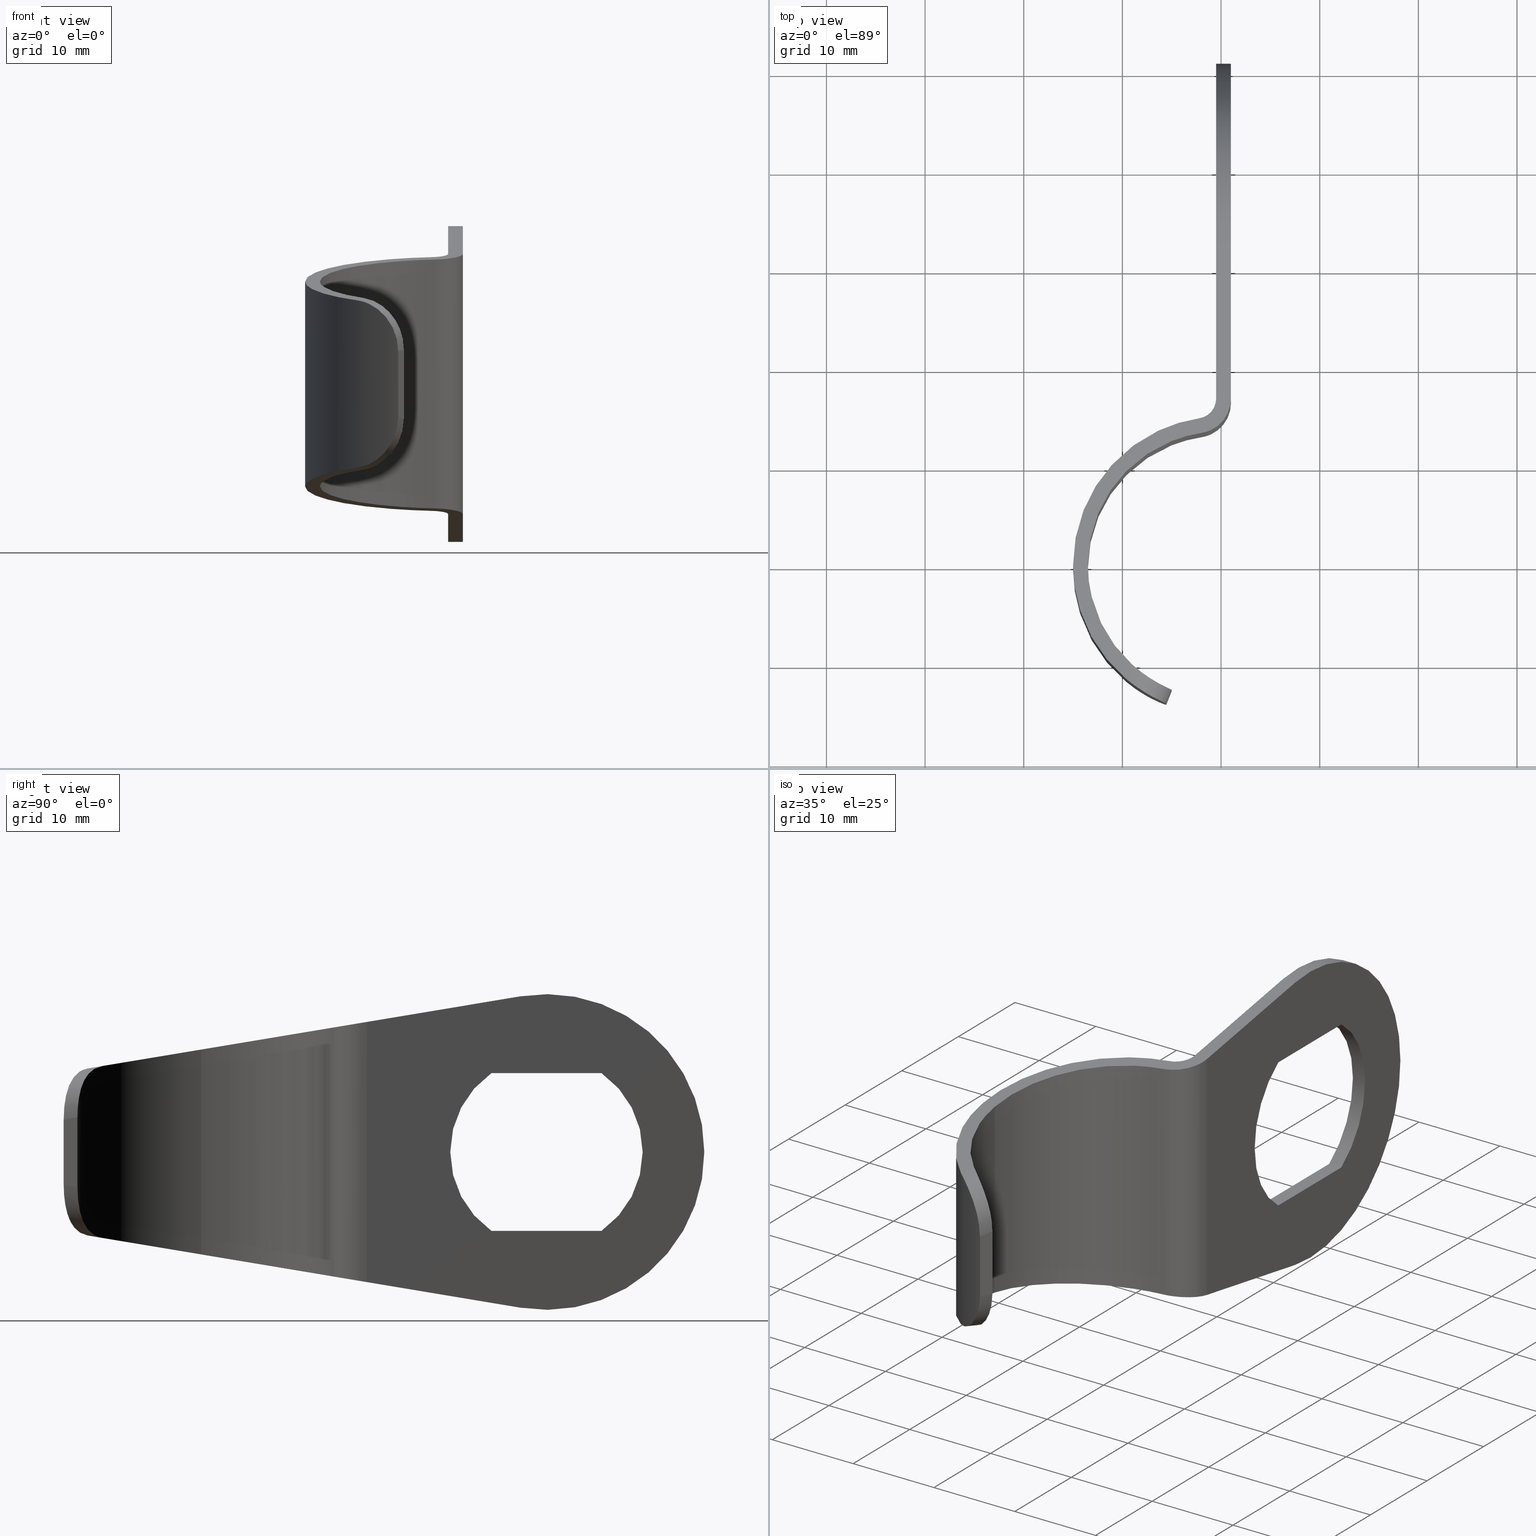
[diagram: canonical four-view strip — front | top / right | iso, engineering-drawing reading convention]
A machine part, canonical four-view strip (front | top / right | iso — engineering-drawing reading convention). The complete STEP part file that produces these views, byte-faithful:
ISO-10303-21;
HEADER;
FILE_DESCRIPTION (( 'STEP AP214' ),
    '1' );
FILE_NAME ('TL_411_1.STEP',
    '2015-10-28T04:44:25',
    ( '' ),
    ( '' ),
    'SwSTEP 2.0',
    'SolidWorks 2015',
    '' );
FILE_SCHEMA (( 'AUTOMOTIVE_DESIGN' ));
ENDSEC;

DATA;
#1 = VECTOR ( 'NONE', #688, 1000.000000000000000 ) ;
#2 = CYLINDRICAL_SURFACE ( 'NONE', #560, 13.50000006286279900 ) ;
#3 = DIRECTION ( 'NONE',  ( 1.000000000000000000, 0.0000000000000000000, -0.0000000000000000000 ) ) ;
#4 = EDGE_CURVE ( 'NONE', #697, #576, #669, .T. ) ;
#5 =( REPRESENTATION_RELATIONSHIP ('NONE','NONE', #717, #241 ) REPRESENTATION_RELATIONSHIP_WITH_TRANSFORMATION ( #460 )SHAPE_REPRESENTATION_RELATIONSHIP( ) );
#6 = MANIFOLD_SOLID_BREP ( '̨گ�2', #585 ) ;
#7 = FILL_AREA_STYLE ('',( #413 ) ) ;
#8 = SHAPE_DEFINITION_REPRESENTATION ( #664, #717 ) ;
#9 = ADVANCED_FACE ( 'NONE', ( #654, #176 ), #33, .T. ) ;
#10 = ORIENTED_EDGE ( 'NONE', *, *, #167, .T. ) ;
#11 = CARTESIAN_POINT ( 'NONE',  ( -15.00100000000002400, 29.42658952044599400, 8.000000000000000000 ) ) ;
#12 = EDGE_LOOP ( 'NONE', ( #106, #665, #208, #408, #484, #337, #42, #143, #102, #590 ) ) ;
#13 = CARTESIAN_POINT ( 'NONE',  ( -7.831030752843139100, -11.00038111497593400, -8.320236309399598800 ) ) ;
#14 = CARTESIAN_POINT ( 'NONE',  ( -7.013600320710913200, -13.26113426192844500, -7.037628418649070700 ) ) ;
#15 = ORIENTED_EDGE ( 'NONE', *, *, #588, .T. ) ;
#16 = CARTESIAN_POINT ( 'NONE',  ( -0.4999999830687073000, 32.36721305702062100, 15.78190812074337000 ) ) ;
#17 = EDGE_CURVE ( 'NONE', #589, #518, #416, .T. ) ;
#18 = LINE ( 'NONE', #689, #321 ) ;
#19 = PRODUCT_DEFINITION_SHAPE ( 'NONE', 'NONE',  #752 ) ;
#20 = FACE_OUTER_BOUND ( 'NONE', #144, .T. ) ;
#21 = VERTEX_POINT ( 'NONE', #500 ) ;
#22 = ORIENTED_EDGE ( 'NONE', *, *, #685, .F. ) ;
#23 = PRODUCT_DEFINITION_FORMATION_WITH_SPECIFIED_SOURCE ( 'ANY', '', #250, .NOT_KNOWN. ) ;
#24 = CARTESIAN_POINT ( 'NONE',  ( 1.001206748977360400, 40.57333792524997300, -8.000000000000000000 ) ) ;
#25 =( GEOMETRIC_REPRESENTATION_CONTEXT ( 3 ) GLOBAL_UNCERTAINTY_ASSIGNED_CONTEXT ( ( #542 ) ) GLOBAL_UNIT_ASSIGNED_CONTEXT ( ( #339, #79, #647 ) ) REPRESENTATION_CONTEXT ( 'NONE', 'WORKASPACE' ) );
#26 = DIRECTION ( 'NONE',  ( -0.0000000000000000000, -0.0000000000000000000, -1.000000000000000000 ) ) ;
#27 = CARTESIAN_POINT ( 'NONE',  ( -1.984335818890923700, 13.35336710553417200, -12.61000297431061100 ) ) ;
#28 = ORIENTED_EDGE ( 'NONE', *, *, #216, .F. ) ;
#29 = CARTESIAN_POINT ( 'NONE',  ( -1.984335818890923700, 13.35336710553417200, 12.61000297431061400 ) ) ;
#30 = LINE ( 'NONE', #62, #490 ) ;
#31 = CARTESIAN_POINT ( 'NONE',  ( 1.001206748977360400, 34.99996372284798700, 0.0000000000000000000 ) ) ;
#32 = LINE ( 'NONE', #736, #638 ) ;
#33 = PLANE ( 'NONE',  #94 ) ;
#34 = CARTESIAN_POINT ( 'NONE',  ( -0.4999999830687073000, 29.42658952044599400, -7.999999999999998200 ) ) ;
#35 = CARTESIAN_POINT ( 'NONE',  ( -8.920456233523886200, 12.32264638362781300, -12.43805731057212300 ) ) ;
#36 = ORIENTED_EDGE ( 'NONE', *, *, #38, .T. ) ;
#37 = CARTESIAN_POINT ( 'NONE',  ( 1.001206748977360400, 32.36721305702062100, 15.78190812074337000 ) ) ;
#38 = EDGE_CURVE ( 'NONE', #606, #518, #621, .T. ) ;
#39 = AXIS2_PLACEMENT_3D ( 'NONE', #31, #389, #726 ) ;
#40 = CARTESIAN_POINT ( 'NONE',  ( -11.31845518809903500, -15.70927592412958300, -7.761749379013025400 ) ) ;
#41 = CARTESIAN_POINT ( 'NONE',  ( -15.00000000000002500, 0.0000000000000000000, -10.38238348310827800 ) ) ;
#42 = ORIENTED_EDGE ( 'NONE', *, *, #703, .T. ) ;
#43 = ORIENTED_EDGE ( 'NONE', *, *, #374, .F. ) ;
#44 = CARTESIAN_POINT ( 'NONE',  ( -0.4999999830687073000, 40.57333792524997300, -8.000000000000000000 ) ) ;
#45 = CARTESIAN_POINT ( 'NONE',  ( -2.205882338001806900, 14.83691622645664400, 12.85748983749685200 ) ) ;
#46 = APPLICATION_CONTEXT ( 'automotive_design' ) ;
#47 = CARTESIAN_POINT ( 'NONE',  ( -1.984335818890923700, 13.35336710553417200, -12.61000297431061100 ) ) ;
#48 = DIRECTION ( 'NONE',  ( -0.0000000000000000000, -0.0000000000000000000, -1.000000000000000000 ) ) ;
#49 = ORIENTED_EDGE ( 'NONE', *, *, #397, .F. ) ;
#50 = DIRECTION ( 'NONE',  ( 1.000000000000000000, -0.0000000000000000000, -0.0000000000000000000 ) ) ;
#51 = CARTESIAN_POINT ( 'NONE',  ( -4.999999986226216100, -12.53993627715202800, -3.855609471484018800 ) ) ;
#52 = ADVANCED_FACE ( 'NONE', ( #608 ), #446, .T. ) ;
#53 = EDGE_CURVE ( 'NONE', #220, #263, #595, .T. ) ;
#54 = CYLINDRICAL_SURFACE ( 'NONE', #547, 15.00000000000002500 ) ;
#55 = ORIENTED_EDGE ( 'NONE', *, *, #4, .T. ) ;
#56 = CARTESIAN_POINT ( 'NONE',  ( -6.070704685685230500, -12.06007120537907600, 6.809031301627409300 ) ) ;
#57 =( BOUNDED_CURVE ( )  B_SPLINE_CURVE ( 3, ( #156, #392, #658, #27 ),
 .UNSPECIFIED., .F., .T. ) 
 B_SPLINE_CURVE_WITH_KNOTS ( ( 4, 4 ),
 ( 1.570796326794895700, 2.994070313583864000 ),
 .UNSPECIFIED. ) 
 CURVE ( )  GEOMETRIC_REPRESENTATION_ITEM ( )  RATIONAL_B_SPLINE_CURVE ( ( 1.000000000000000000, 0.8381958751871453300, 0.8381958751871453300, 1.000000000000000000 ) ) 
 REPRESENTATION_ITEM ( '' )  );
#58 = CARTESIAN_POINT ( 'NONE',  ( -9.637746092784999200, -11.49407892138418500, -8.464931949248944300 ) ) ;
#59 = LINE ( 'NONE', #11, #205 ) ;
#60 = DIRECTION ( 'NONE',  ( 0.0000000000000000000, 0.0000000000000000000, 1.000000000000000000 ) ) ;
#61 = VERTEX_POINT ( 'NONE', #45 ) ;
#62 = CARTESIAN_POINT ( 'NONE',  ( -15.00000000000002300, 32.36721305702062100, 15.78190812074337000 ) ) ;
#63 = CARTESIAN_POINT ( 'NONE',  ( -15.00100000000002400, 34.99996372284798700, 0.0000000000000000000 ) ) ;
#64 = ORIENTED_EDGE ( 'NONE', *, *, #299, .T. ) ;
#65 = CARTESIAN_POINT ( 'NONE',  ( 1.001206748977360400, 40.57333792524997300, -8.000000000000000000 ) ) ;
#66 = B_SPLINE_CURVE_WITH_KNOTS ( 'NONE', 3,
 ( #244, #674, #163, #504, #400, #177, #627, #728, #441, #720, #562, #451, #530, #74, #349, #124, #245, #139 ),
 .UNSPECIFIED., .F., .F.,
 ( 4, 2, 2, 2, 2, 2, 2, 2, 4 ),
 ( 4.336808689942017700E-019, 0.0009591271505971293200, 0.001918254301194258200, 0.002877381451791387300, 0.003836508602388516000, 0.004795635752985645500, 0.005754762903582774600, 0.006713890054179903800, 0.007673017204777034600 ),
 .UNSPECIFIED. ) ;
#67 = PRESENTATION_STYLE_ASSIGNMENT (( #200 ) ) ;
#68 = PLANE ( 'NONE',  #125 ) ;
#69 = CARTESIAN_POINT ( 'NONE',  ( -6.445629770991616600, -13.54560565954648900, -6.315059150948194100 ) ) ;
#70 = PRODUCT_RELATED_PRODUCT_CATEGORY ( 'part', '', ( #250 ) ) ;
#71 = ADVANCED_FACE ( 'NONE', ( #442 ), #498, .F. ) ;
#72 = DIRECTION ( 'NONE',  ( -1.000000000000000000, 0.0000000000000000000, 0.0000000000000000000 ) ) ;
#73 = AXIS2_PLACEMENT_3D ( 'NONE', #240, #538, #402 ) ;
#74 = CARTESIAN_POINT ( 'NONE',  ( -8.393102569198235900, -12.43538013261101400, 8.077809681396376000 ) ) ;
#75 = CARTESIAN_POINT ( 'NONE',  ( -5.443335865328828400, -12.35452675363955100, -5.719764634765367900 ) ) ;
#76 = ORIENTED_EDGE ( 'NONE', *, *, #286, .T. ) ;
#77 = APPLICATION_PROTOCOL_DEFINITION ( 'draft international standard', 'automotive_design', 1998, #131 ) ;
#78 = VECTOR ( 'NONE', #101, 1000.000000000000000 ) ;
#79 =( NAMED_UNIT ( * ) PLANE_ANGLE_UNIT ( ) SI_UNIT ( $, .RADIAN. ) );
#80 = FACE_BOUND ( 'NONE', #462, .T. ) ;
#81 = ORIENTED_EDGE ( 'NONE', *, *, #559, .F. ) ;
#82 = ADVANCED_FACE ( 'NONE', ( #745 ), #573, .T. ) ;
#83 = AXIS2_PLACEMENT_3D ( 'NONE', #693, #304, #640 ) ;
#84 = EDGE_CURVE ( 'NONE', #284, #308, #135, .T. ) ;
#85 = AXIS2_PLACEMENT_3D ( 'NONE', #731, #231, #151 ) ;
#86 = ORIENTED_EDGE ( 'NONE', *, *, #643, .T. ) ;
#87 = DIRECTION ( 'NONE',  ( -1.000000000000000000, 0.0000000000000000000, 0.0000000000000000000 ) ) ;
#88 = LINE ( 'NONE', #335, #78 ) ;
#89 = DIRECTION ( 'NONE',  ( 0.0000000000000000000, 0.9863692575464607600, -0.1645469166142101700 ) ) ;
#90 = EDGE_CURVE ( 'NONE', #261, #297, #142, .T. ) ;
#91 = LINE ( 'NONE', #644, #687 ) ;
#92 = EDGE_LOOP ( 'NONE', ( #554, #86, #100, #399, #557 ) ) ;
#93 = ORIENTED_EDGE ( 'NONE', *, *, #466, .F. ) ;
#94 = AXIS2_PLACEMENT_3D ( 'NONE', #95, #727, #277 ) ;
#95 = CARTESIAN_POINT ( 'NONE',  ( -0.4999999830687073000, 16.81517172331753300, 16.00000000000000000 ) ) ;
#96 = CARTESIAN_POINT ( 'NONE',  ( -15.00100000000002400, 40.57333792524997300, 8.000000000000000000 ) ) ;
#97 = CARTESIAN_POINT ( 'NONE',  ( -5.444078822227735900, -12.35419488419227500, 5.721221279957527300 ) ) ;
#98 = ADVANCED_FACE ( 'NONE', ( #427 ), #550, .F. ) ;
#99 = ORIENTED_EDGE ( 'NONE', *, *, #722, .F. ) ;
#100 = ORIENTED_EDGE ( 'NONE', *, *, #397, .T. ) ;
#101 = DIRECTION ( 'NONE',  ( 1.000000000000000000, -0.0000000000000000000, -0.0000000000000000000 ) ) ;
#102 = ORIENTED_EDGE ( 'NONE', *, *, #364, .T. ) ;
#103 = CARTESIAN_POINT ( 'NONE',  ( -9.049220486844756600, -10.01806419812554000, -8.711161918128469800 ) ) ;
#104 = CARTESIAN_POINT ( 'NONE',  ( -15.00000000000002500, 0.0000000000000000000, -10.38238348310827800 ) ) ;
#105 = ORIENTED_EDGE ( 'NONE', *, *, #655, .F. ) ;
#106 = ORIENTED_EDGE ( 'NONE', *, *, #4, .F. ) ;
#107 = CARTESIAN_POINT ( 'NONE',  ( 0.0000000000000000000, 0.0000000000000000000, 16.00000000000000000 ) ) ;
#108 = CARTESIAN_POINT ( 'NONE',  ( -15.00000000000002300, 32.36721305702062100, -15.78190812074337000 ) ) ;
#109 = PRESENTATION_LAYER_ASSIGNMENT (  '', '', ( #737 ) ) ;
#110 = STYLED_ITEM ( 'NONE', ( #67 ), #418 ) ;
#111 =( BOUNDED_CURVE ( )  B_SPLINE_CURVE ( 3, ( #660, #611, #215, #616 ),
 .UNSPECIFIED., .F., .F. ) 
 B_SPLINE_CURVE_WITH_KNOTS ( ( 4, 4 ),
 ( 1.570796326794896600, 2.993998548937665900 ),
 .UNSPECIFIED. ) 
 CURVE ( )  GEOMETRIC_REPRESENTATION_ITEM ( )  RATIONAL_B_SPLINE_CURVE ( ( 1.000000000000000000, 0.8382114974115488800, 0.8382114974115488800, 1.000000000000000000 ) ) 
 REPRESENTATION_ITEM ( '' )  );
#112 = DIRECTION ( 'NONE',  ( 0.0000000000000000000, 0.1645469166142101700, -0.9863692575464607600 ) ) ;
#113 = LINE ( 'NONE', #40, #423 ) ;
#114 = APPLICATION_PROTOCOL_DEFINITION ( 'draft international standard', 'automotive_design', 1998, #488 ) ;
#115 = CARTESIAN_POINT ( 'NONE',  ( 1.001206748977360400, 50.99996372284798700, 0.0000000000000000000 ) ) ;
#116 = DIRECTION ( 'NONE',  ( 1.000000000000000000, -0.0000000000000000000, -0.0000000000000000000 ) ) ;
#117 = CARTESIAN_POINT ( 'NONE',  ( -0.4999999830687073000, 17.27165112733882100, 13.26365428113503600 ) ) ;
#118 = DIRECTION ( 'NONE',  ( 1.000000000000000000, 0.0000000000000000000, -0.0000000000000000000 ) ) ;
#119 = CARTESIAN_POINT ( 'NONE',  ( -6.676572810994271000, -11.73628603075249400, 7.495914837085221500 ) ) ;
#120 = ORIENTED_EDGE ( 'NONE', *, *, #482, .F. ) ;
#121 = CARTESIAN_POINT ( 'NONE',  ( 1.001206748977360400, 29.42658952044599400, 8.000000000000000000 ) ) ;
#122 = DIRECTION ( 'NONE',  ( -1.000000000000000000, 0.0000000000000000000, 0.0000000000000000000 ) ) ;
#123 = LINE ( 'NONE', #491, #712 ) ;
#124 = CARTESIAN_POINT ( 'NONE',  ( -9.139469970365610200, -11.89816771824275900, 8.368767114577341500 ) ) ;
#125 = AXIS2_PLACEMENT_3D ( 'NONE', #528, #696, #641 ) ;
#126 = EDGE_CURVE ( 'NONE', #170, #697, #282, .T. ) ;
#127 = ORIENTED_EDGE ( 'NONE', *, *, #329, .T. ) ;
#128 = ADVANCED_FACE ( 'NONE', ( #294 ), #260, .T. ) ;
#129 = CARTESIAN_POINT ( 'NONE',  ( 1.001206748977360400, 50.99996372284798700, 0.0000000000000000000 ) ) ;
#130 = CARTESIAN_POINT ( 'NONE',  ( -5.224128960322223800, -12.44880368770803800, -5.118682594537248500 ) ) ;
#131 = APPLICATION_CONTEXT ( 'automotive_design' ) ;
#132 = ADVANCED_FACE ( 'NONE', ( #721 ), #197, .F. ) ;
#133 = CARTESIAN_POINT ( 'NONE',  ( -6.669442557162417600, -11.74035838370241800, -7.489206859803028100 ) ) ;
#134 = DIRECTION ( 'NONE',  ( 0.0000000000000000000, 1.734723475976807100E-015, 1.000000000000000000 ) ) ;
#135 = LINE ( 'NONE', #468, #316 ) ;
#136 = CARTESIAN_POINT ( 'NONE',  ( -0.4999999830687073000, 50.99996372284798700, 0.0000000000000000000 ) ) ;
#137 = EDGE_LOOP ( 'NONE', ( #193, #388, #120, #320 ) ) ;
#138 = EDGE_CURVE ( 'NONE', #310, #606, #494, .T. ) ;
#139 = CARTESIAN_POINT ( 'NONE',  ( -9.637746092785000900, -11.49407892138418300, 8.464931949248947900 ) ) ;
#140 = VECTOR ( 'NONE', #684, 1000.000000000000100 ) ;
#141 = VECTOR ( 'NONE', #439, 1000.000000000000000 ) ;
#142 =( BOUNDED_CURVE ( )  B_SPLINE_CURVE ( 3, ( #456, #620, #186, #104 ),
 .UNSPECIFIED., .F., .F. ) 
 B_SPLINE_CURVE_WITH_KNOTS ( ( 4, 4 ),
 ( 3.839370375923106600, 4.712388980384689700 ),
 .UNSPECIFIED. ) 
 CURVE ( )  GEOMETRIC_REPRESENTATION_ITEM ( )  RATIONAL_B_SPLINE_CURVE ( ( 1.000000000000000000, 0.9374886493068308500, 0.9374886493068308500, 1.000000000000000000 ) ) 
 REPRESENTATION_ITEM ( '' )  );
#143 = ORIENTED_EDGE ( 'NONE', *, *, #383, .F. ) ;
#144 = EDGE_LOOP ( 'NONE', ( #164, #371, #76, #81 ) ) ;
#145 = UNCERTAINTY_MEASURE_WITH_UNIT (LENGTH_MEASURE( 1.000000000000000100E-005 ), #681, 'distance_accuracy_value', 'NONE');
#146 = DIRECTION ( 'NONE',  ( 1.000000000000000000, -0.0000000000000000000, -0.0000000000000000000 ) ) ;
#147 = MECHANICAL_DESIGN_GEOMETRIC_PRESENTATION_REPRESENTATION (  '', ( #737 ), #198 ) ;
#148 = PRESENTATION_LAYER_ASSIGNMENT (  '', '', ( #110 ) ) ;
#149 = CARTESIAN_POINT ( 'NONE',  ( -2.205882338001806900, 14.83691622645664400, 16.00000000000000000 ) ) ;
#150 = EDGE_CURVE ( 'NONE', #318, #308, #91, .T. ) ;
#151 = DIRECTION ( 'NONE',  ( -0.9288841643525753700, 0.3703703676254588300, 0.0000000000000000000 ) ) ;
#152 = EDGE_LOOP ( 'NONE', ( #246, #710, #377, #599 ) ) ;
#153 = DIRECTION ( 'NONE',  ( 0.0000000000000000000, 0.9863692575464607600, -0.1645469166142101700 ) ) ;
#154 = CARTESIAN_POINT ( 'NONE',  ( 1.001206748977360400, 16.81535115381116800, 13.18753395082193900 ) ) ;
#155 = CARTESIAN_POINT ( 'NONE',  ( -13.50000006286280100, 7.012285762349909700, 11.55217866050720200 ) ) ;
#156 = CARTESIAN_POINT ( 'NONE',  ( 1.001206748977360400, 16.81535115381116800, -13.18753395082193900 ) ) ;
#157 = LINE ( 'NONE', #117, #601 ) ;
#158 =( NAMED_UNIT ( * ) SI_UNIT ( $, .STERADIAN. ) SOLID_ANGLE_UNIT ( ) );
#159 = CARTESIAN_POINT ( 'NONE',  ( -2.205882338001806900, 14.83691622645664400, -12.85748983749685300 ) ) ;
#160 = DIRECTION ( 'NONE',  ( 0.0000000000000000000, 0.0000000000000000000, 1.000000000000000000 ) ) ;
#161 = LINE ( 'NONE', #467, #475 ) ;
#162 = CARTESIAN_POINT ( 'NONE',  ( -11.92602822276886900, -7.419471597220776500, -9.144661235695387800 ) ) ;
#163 = CARTESIAN_POINT ( 'NONE',  ( -5.583950364837410700, -13.92203563926996100, 3.941284647561818800 ) ) ;
#164 = ORIENTED_EDGE ( 'NONE', *, *, #38, .F. ) ;
#165 = CARTESIAN_POINT ( 'NONE',  ( -0.4999999830687073000, 32.36721305702062100, -15.78190812074337000 ) ) ;
#166 = AXIS2_PLACEMENT_3D ( 'NONE', #411, #122, #160 ) ;
#167 = EDGE_CURVE ( 'NONE', #618, #716, #708, .T. ) ;
#168 = AXIS2_PLACEMENT_3D ( 'NONE', #96, #185, #118 ) ;
#169 = DIRECTION ( 'NONE',  ( -1.000000000000000000, 0.0000000000000000000, 0.0000000000000000000 ) ) ;
#170 = VERTEX_POINT ( 'NONE', #362 ) ;
#171 = DIRECTION ( 'NONE',  ( 0.9288841643525754800, -0.3703703676254590000, 0.0000000000000000000 ) ) ;
#172 =( BOUNDED_CURVE ( )  B_SPLINE_CURVE ( 3, ( #410, #692, #476, #513 ),
 .UNSPECIFIED., .F., .F. ) 
 B_SPLINE_CURVE_WITH_KNOTS ( ( 4, 4 ),
 ( 1.570796326794896600, 2.993998548937665900 ),
 .UNSPECIFIED. ) 
 CURVE ( )  GEOMETRIC_REPRESENTATION_ITEM ( )  RATIONAL_B_SPLINE_CURVE ( ( 1.000000000000000000, 0.8382114974115488800, 0.8382114974115488800, 1.000000000000000000 ) ) 
 REPRESENTATION_ITEM ( '' )  );
#173 = PRODUCT ( 'TL_411_1', 'TL_411_1', '', ( #175 ) ) ;
#174 = DIRECTION ( 'NONE',  ( -1.000000000000000000, 0.0000000000000000000, 0.0000000000000000000 ) ) ;
#175 = PRODUCT_CONTEXT ( 'NONE', #488, 'mechanical' ) ;
#176 = FACE_OUTER_BOUND ( 'NONE', #190, .T. ) ;
#177 = CARTESIAN_POINT ( 'NONE',  ( -5.996573578598408000, -13.74973370903933500, 5.481020791800261800 ) ) ;
#178 = CARTESIAN_POINT ( 'NONE',  ( -1.178381815577953300, 14.98968013103816300, 12.88297403550537700 ) ) ;
#179 =( NAMED_UNIT ( * ) SI_UNIT ( $, .STERADIAN. ) SOLID_ANGLE_UNIT ( ) );
#180 = ORIENTED_EDGE ( 'NONE', *, *, #714, .F. ) ;
#181 = DIRECTION ( 'NONE',  ( 0.0000000000000000000, 0.0000000000000000000, -1.000000000000000000 ) ) ;
#182 = CARTESIAN_POINT ( 'NONE',  ( -0.4999999830687073000, 16.81517172331753300, 13.18750401808199500 ) ) ;
#183 = CARTESIAN_POINT ( 'NONE',  ( -6.094590899351362400, -15.28515634474223900, -3.072333234341650100 ) ) ;
#184 = EDGE_CURVE ( 'NONE', #263, #267, #539, .T. ) ;
#185 = DIRECTION ( 'NONE',  ( 0.0000000000000000000, 0.0000000000000000000, 1.000000000000000000 ) ) ;
#186 = CARTESIAN_POINT ( 'NONE',  ( -15.00000000000002500, -4.509693660318292900, -9.630072742477684900 ) ) ;
#187 = DIRECTION ( 'NONE',  ( -0.0000000000000000000, -0.0000000000000000000, -1.000000000000000000 ) ) ;
#188 = CARTESIAN_POINT ( 'NONE',  ( -9.049220486844761900, -10.01806419812553500, 8.711161918128475200 ) ) ;
#189 = ORIENTED_EDGE ( 'NONE', *, *, #648, .T. ) ;
#190 = EDGE_LOOP ( 'NONE', ( #380, #430, #424, #691, #636 ) ) ;
#191 = DIRECTION ( 'NONE',  ( 0.9288841643525754800, -0.3703703676254589400, 0.0000000000000000000 ) ) ;
#192 = CARTESIAN_POINT ( 'NONE',  ( 1.001206748977360400, 16.81535115381116800, -13.18753395082193900 ) ) ;
#193 = ORIENTED_EDGE ( 'NONE', *, *, #655, .T. ) ;
#194 = CARTESIAN_POINT ( 'NONE',  ( -13.50000006286279900, -3.876687536409117600, 9.735671335591039400 ) ) ;
#195 = ORIENTED_EDGE ( 'NONE', *, *, #17, .T. ) ;
#196 = ADVANCED_FACE ( 'NONE', ( #80, #404 ), #68, .F. ) ;
#197 = PLANE ( 'NONE',  #670 ) ;
#198 =( GEOMETRIC_REPRESENTATION_CONTEXT ( 3 ) GLOBAL_UNCERTAINTY_ASSIGNED_CONTEXT ( ( #541 ) ) GLOBAL_UNIT_ASSIGNED_CONTEXT ( ( #221, #553, #158 ) ) REPRESENTATION_CONTEXT ( 'NONE', 'WORKASPACE' ) );
#199 = MECHANICAL_DESIGN_GEOMETRIC_PRESENTATION_REPRESENTATION (  '', ( #110 ), #234 ) ;
#200 = SURFACE_STYLE_USAGE ( .BOTH. , #711 ) ;
#201 = EDGE_CURVE ( 'NONE', #227, #724, #521, .T. ) ;
#202 = CARTESIAN_POINT ( 'NONE',  ( -6.069155970377289900, -12.06083902616860500, -6.806876091736331300 ) ) ;
#203 = DIRECTION ( 'NONE',  ( -0.3660022587492334800, -0.9179290029304906200, -0.1531296580336233600 ) ) ;
#204 = VECTOR ( 'NONE', #26, 1000.000000000000000 ) ;
#205 = VECTOR ( 'NONE', #116, 1000.000000000000000 ) ;
#206 = ORIENTED_EDGE ( 'NONE', *, *, #588, .F. ) ;
#207 = ADVANCED_FACE ( 'NONE', ( #375 ), #650, .F. ) ;
#208 = ORIENTED_EDGE ( 'NONE', *, *, #90, .T. ) ;
#209 = ORIENTED_EDGE ( 'NONE', *, *, #299, .F. ) ;
#210 = ORIENTED_EDGE ( 'NONE', *, *, #722, .T. ) ;
#211 = AXIS2_PLACEMENT_3D ( 'NONE', #350, #409, #368 ) ;
#212 = EDGE_CURVE ( 'NONE', #606, #576, #217, .T. ) ;
#213 = LINE ( 'NONE', #579, #372 ) ;
#214 = CARTESIAN_POINT ( 'NONE',  ( -15.00000000000002300, -14.28109305101088500, -8.000000000000000000 ) ) ;
#215 = CARTESIAN_POINT ( 'NONE',  ( -1.178381815577954200, 14.98968013103816000, -12.88297403550538100 ) ) ;
#216 = EDGE_CURVE ( 'NONE', #310, #21, #363, .T. ) ;
#217 = LINE ( 'NONE', #524, #242 ) ;
#218 = CARTESIAN_POINT ( 'NONE',  ( -0.4999999830687073000, 40.57333792524997300, 8.000000000000000000 ) ) ;
#219 = ORIENTED_EDGE ( 'NONE', *, *, #648, .F. ) ;
#220 = VERTEX_POINT ( 'NONE', #531 ) ;
#221 =( LENGTH_UNIT ( ) NAMED_UNIT ( * ) SI_UNIT ( .MILLI., .METRE. ) );
#222 = EDGE_LOOP ( 'NONE', ( #340, #436, #740, #453 ) ) ;
#223 = CARTESIAN_POINT ( 'NONE',  ( -13.09339774898261800, -8.596526757758200100, 8.948303942653790700 ) ) ;
#224 = CARTESIAN_POINT ( 'NONE',  ( -13.50000006286279900, 0.0000000000000000000, -10.38238348310827800 ) ) ;
#225 = DIRECTION ( 'NONE',  ( -0.0000000000000000000, -0.0000000000000000000, -1.000000000000000000 ) ) ;
#226 = SURFACE_STYLE_FILL_AREA ( #7 ) ;
#227 = VERTEX_POINT ( 'NONE', #682 ) ;
#228 = ORIENTED_EDGE ( 'NONE', *, *, #685, .T. ) ;
#229 = DIRECTION ( 'NONE',  ( 0.0000000000000000000, 0.0000000000000000000, -1.000000000000000000 ) ) ;
#230 = CARTESIAN_POINT ( 'NONE',  ( -9.142923249516822900, -11.89544477830585500, -8.369575193101999500 ) ) ;
#231 = DIRECTION ( 'NONE',  ( 0.3660022587492334800, 0.9179290029304906200, -0.1531296580336233800 ) ) ;
#232 = DIRECTION ( 'NONE',  ( 0.0000000000000000000, 0.0000000000000000000, 1.000000000000000000 ) ) ;
#233 = CARTESIAN_POINT ( 'NONE',  ( -9.637746092785000900, -11.49407892138418300, 8.464931949248947900 ) ) ;
#234 =( GEOMETRIC_REPRESENTATION_CONTEXT ( 3 ) GLOBAL_UNCERTAINTY_ASSIGNED_CONTEXT ( ( #285 ) ) GLOBAL_UNIT_ASSIGNED_CONTEXT ( ( #517, #370, #314 ) ) REPRESENTATION_CONTEXT ( 'NONE', 'WORKASPACE' ) );
#235 = EDGE_CURVE ( 'NONE', #431, #514, #59, .T. ) ;
#236 = CARTESIAN_POINT ( 'NONE',  ( -4.999999986226225900, -12.53993627715202300, 3.530293064388505100 ) ) ;
#237 = CIRCLE ( 'NONE', #365, 9.750000000000000000 ) ;
#238 = CARTESIAN_POINT ( 'NONE',  ( -5.029093018165823100, -12.52844599679121300, 4.181227890152497300 ) ) ;
#239 = ORIENTED_EDGE ( 'NONE', *, *, #201, .T. ) ;
#240 = CARTESIAN_POINT ( 'NONE',  ( 0.0000000000000000000, 0.0000000000000000000, 0.0000000000000000000 ) ) ;
#241 = SHAPE_REPRESENTATION ( 'lever', ( #73 ), #25 ) ;
#242 = VECTOR ( 'NONE', #580, 1000.000000000000000 ) ;
#243 = ORIENTED_EDGE ( 'NONE', *, *, #508, .T. ) ;
#244 = CARTESIAN_POINT ( 'NONE',  ( -5.555555514381896200, -13.93326246528865500, 3.297857263757408000 ) ) ;
#245 = CARTESIAN_POINT ( 'NONE',  ( -9.390733753552028800, -11.70119792792617700, 8.430380189207825800 ) ) ;
#246 = ORIENTED_EDGE ( 'NONE', *, *, #482, .T. ) ;
#247 = DIRECTION ( 'NONE',  ( -1.000000000000000000, 0.0000000000000000000, 0.0000000000000000000 ) ) ;
#248 = AXIS2_PLACEMENT_3D ( 'NONE', #63, #582, #526 ) ;
#249 = EDGE_CURVE ( 'NONE', #514, #220, #661, .T. ) ;
#250 = PRODUCT ( 'lever', 'lever', '', ( #581 ) ) ;
#251 = CARTESIAN_POINT ( 'NONE',  ( -8.809403236190938500, -10.23468880092269200, 8.675024426838733800 ) ) ;
#252 = ORIENTED_EDGE ( 'NONE', *, *, #184, .F. ) ;
#253 = CARTESIAN_POINT ( 'NONE',  ( 0.0000000000000000000, 0.0000000000000000000, 0.0000000000000000000 ) ) ;
#254 = CARTESIAN_POINT ( 'NONE',  ( 1.001206748977360400, 40.57333792524997300, 8.000000000000000000 ) ) ;
#255 = CARTESIAN_POINT ( 'NONE',  ( 1.001206748977360400, 34.99996372284798700, 0.0000000000000000000 ) ) ;
#256 = VECTOR ( 'NONE', #50, 1000.000000000000000 ) ;
#257 = ORIENTED_EDGE ( 'NONE', *, *, #84, .T. ) ;
#258 = APPLICATION_CONTEXT ( 'automotive_design' ) ;
#259 =( BOUNDED_CURVE ( )  B_SPLINE_CURVE ( 3, ( #182, #307, #178, #744 ),
 .UNSPECIFIED., .F., .T. ) 
 B_SPLINE_CURVE_WITH_KNOTS ( ( 4, 4 ),
 ( 4.712388980384689700, 6.135591202527458600 ),
 .UNSPECIFIED. ) 
 CURVE ( )  GEOMETRIC_REPRESENTATION_ITEM ( )  RATIONAL_B_SPLINE_CURVE ( ( 1.000000000000000000, 0.8382114974115491000, 0.8382114974115491000, 1.000000000000000000 ) ) 
 REPRESENTATION_ITEM ( '' )  );
#260 = CYLINDRICAL_SURFACE ( 'NONE', #642, 5.000000000000000000 ) ;
#261 = VERTEX_POINT ( 'NONE', #331 ) ;
#262 = EDGE_CURVE ( 'NONE', #695, #297, #32, .T. ) ;
#263 = VERTEX_POINT ( 'NONE', #65 ) ;
#264 = ORIENTED_EDGE ( 'NONE', *, *, #714, .T. ) ;
#265 = PRODUCT_DEFINITION_SHAPE ( 'NONE', 'NONE',  #586 ) ;
#266 = DIRECTION ( 'NONE',  ( 0.0000000000000000000, 0.0000000000000000000, 1.000000000000000000 ) ) ;
#267 = VERTEX_POINT ( 'NONE', #254 ) ;
#268 = VERTEX_POINT ( 'NONE', #317 ) ;
#269 = VECTOR ( 'NONE', #89, 1000.000000000000000 ) ;
#270 = VERTEX_POINT ( 'NONE', #347 ) ;
#271 = CARTESIAN_POINT ( 'NONE',  ( -15.00000000000002300, -14.28109305101088500, 8.000000000000000000 ) ) ;
#272 = CARTESIAN_POINT ( 'NONE',  ( -5.555555514381896200, -13.93326246528865500, 3.297857263757408000 ) ) ;
#273 = EDGE_CURVE ( 'NONE', #716, #318, #332, .T. ) ;
#274 = FACE_OUTER_BOUND ( 'NONE', #667, .T. ) ;
#275 = ORIENTED_EDGE ( 'NONE', *, *, #138, .F. ) ;
#276 =( BOUNDED_CURVE ( )  B_SPLINE_CURVE ( 3, ( #628, #729, #35, #450 ),
 .UNSPECIFIED., .F., .F. ) 
 B_SPLINE_CURVE_WITH_KNOTS ( ( 4, 4 ),
 ( 4.712388980384689700, 6.135662967173656700 ),
 .UNSPECIFIED. ) 
 CURVE ( )  GEOMETRIC_REPRESENTATION_ITEM ( )  RATIONAL_B_SPLINE_CURVE ( ( 1.000000000000000000, 0.8381958751871456700, 0.8381958751871456700, 1.000000000000000000 ) ) 
 REPRESENTATION_ITEM ( '' )  );
#277 = DIRECTION ( 'NONE',  ( 0.0000000000000000000, 0.0000000000000000000, 1.000000000000000000 ) ) ;
#278 = CARTESIAN_POINT ( 'NONE',  ( -15.00100000000002400, 34.99996372284798700, 0.0000000000000000000 ) ) ;
#279 = CARTESIAN_POINT ( 'NONE',  ( -9.637746092785000900, -11.49407892138418300, 8.464931949248947900 ) ) ;
#280 = FACE_OUTER_BOUND ( 'NONE', #393, .T. ) ;
#281 = CARTESIAN_POINT ( 'NONE',  ( -2.498793251022625400, 16.81535115381116400, 16.00000000000000000 ) ) ;
#282 = B_SPLINE_CURVE_WITH_KNOTS ( 'NONE', 3,
 ( #698, #51, #587, #312, #130, #75, #646, #594, #202, #535, #133, #487, #422, #13, #666, #502, #617, #103 ),
 .UNSPECIFIED., .F., .F.,
 ( 4, 2, 2, 2, 2, 2, 2, 2, 4 ),
 ( 2.168404344971008900E-018, 0.0009620872368226835700, 0.001924174473645365000, 0.002886261710468046100, 0.003848348947290727800, 0.004810436184113409800, 0.005772523420936088000, 0.006734610657758767800, 0.007696697894581447700 ),
 .UNSPECIFIED. ) ;
#283 = DIRECTION ( 'NONE',  ( -0.0000000000000000000, -0.0000000000000000000, -1.000000000000000000 ) ) ;
#284 = VERTEX_POINT ( 'NONE', #707 ) ;
#285 = UNCERTAINTY_MEASURE_WITH_UNIT (LENGTH_MEASURE( 1.000000000000000100E-005 ), #517, 'distance_accuracy_value', 'NONE');
#286 = EDGE_CURVE ( 'NONE', #576, #605, #276, .T. ) ;
#287 = ORIENTED_EDGE ( 'NONE', *, *, #407, .F. ) ;
#288 = CARTESIAN_POINT ( 'NONE',  ( 1.001206748977360400, 34.99996372284798700, 0.0000000000000000000 ) ) ;
#289 = PLANE ( 'NONE',  #325 ) ;
#290 = VECTOR ( 'NONE', #296, 1000.000000000000000 ) ;
#291 = CARTESIAN_POINT ( 'NONE',  ( -7.910618784143045100, -12.74779841782472900, -7.797943957001268500 ) ) ;
#292 = DIRECTION ( 'NONE',  ( 0.3660022587492334800, 0.9179290029304906200, 0.1531296580336233800 ) ) ;
#293 = CARTESIAN_POINT ( 'NONE',  ( 1.001206748977360400, 16.81535115381116400, 16.00000000000000000 ) ) ;
#294 = FACE_OUTER_BOUND ( 'NONE', #570, .T. ) ;
#295 = DIRECTION ( 'NONE',  ( 0.0000000000000000000, -0.9863692575464607600, -0.1645469166142101700 ) ) ;
#296 = DIRECTION ( 'NONE',  ( 0.0000000000000000000, 1.000000000000000000, 0.0000000000000000000 ) ) ;
#297 = VERTEX_POINT ( 'NONE', #41 ) ;
#298 = CARTESIAN_POINT ( 'NONE',  ( -7.676230553558712100, -12.88960614556413700, -7.632687449350017400 ) ) ;
#299 = EDGE_CURVE ( 'NONE', #284, #61, #259, .T. ) ;
#300 = CARTESIAN_POINT ( 'NONE',  ( -0.4999999830687073000, 34.99996372284798700, 0.0000000000000000000 ) ) ;
#301 = CARTESIAN_POINT ( 'NONE',  ( -7.835891642876994500, -10.99698461569209400, 8.322862962820087400 ) ) ;
#302 = CARTESIAN_POINT ( 'NONE',  ( -13.50000006286279900, 0.0000000000000000000, -10.38238348310827800 ) ) ;
#303 = LINE ( 'NONE', #183, #140 ) ;
#304 = DIRECTION ( 'NONE',  ( 1.000000000000000000, -0.0000000000000000000, -0.0000000000000000000 ) ) ;
#305 = CARTESIAN_POINT ( 'NONE',  ( -0.4999999830687073000, 40.57333792524997300, 8.000000000000000000 ) ) ;
#306 = FACE_OUTER_BOUND ( 'NONE', #361, .T. ) ;
#307 = CARTESIAN_POINT ( 'NONE',  ( -0.4999999830687070800, 15.77637716512795800, 13.01421147045039500 ) ) ;
#308 = VERTEX_POINT ( 'NONE', #477 ) ;
#309 = CARTESIAN_POINT ( 'NONE',  ( -5.696994114226257900, -13.87616462230271700, -4.579293062386233800 ) ) ;
#310 = VERTEX_POINT ( 'NONE', #188 ) ;
#311 = ORIENTED_EDGE ( 'NONE', *, *, #604, .T. ) ;
#312 = CARTESIAN_POINT ( 'NONE',  ( -5.140076876850799600, -12.48331820437842800, -4.805819364911502400 ) ) ;
#313 = ORIENTED_EDGE ( 'NONE', *, *, #167, .F. ) ;
#314 =( NAMED_UNIT ( * ) SI_UNIT ( $, .STERADIAN. ) SOLID_ANGLE_UNIT ( ) );
#315 = EDGE_CURVE ( 'NONE', #589, #323, #351, .T. ) ;
#316 = VECTOR ( 'NONE', #283, 1000.000000000000000 ) ;
#317 = CARTESIAN_POINT ( 'NONE',  ( -2.205882338001806900, 14.83691622645664400, -12.85748983749685300 ) ) ;
#318 = VERTEX_POINT ( 'NONE', #165 ) ;
#319 = ADVANCED_FACE ( 'NONE', ( #20 ), #2, .F. ) ;
#320 = ORIENTED_EDGE ( 'NONE', *, *, #437, .F. ) ;
#321 = VECTOR ( 'NONE', #705, 1000.000000000000000 ) ;
#322 = CARTESIAN_POINT ( 'NONE',  ( -4.999999986226225900, -12.53993627715202300, 16.00000000000000000 ) ) ;
#323 = VERTEX_POINT ( 'NONE', #37 ) ;
#324 = EDGE_CURVE ( 'NONE', #589, #741, #492, .T. ) ;
#325 = AXIS2_PLACEMENT_3D ( 'NONE', #657, #171, #459 ) ;
#326 = CARTESIAN_POINT ( 'NONE',  ( -15.00000000000002500, 0.0000000000000000000, 10.38238348310828100 ) ) ;
#327 = CARTESIAN_POINT ( 'NONE',  ( -1.984335818890923700, 13.35336710553417200, 16.00000000000000000 ) ) ;
#328 = ORIENTED_EDGE ( 'NONE', *, *, #572, .F. ) ;
#329 = EDGE_CURVE ( 'NONE', #680, #695, #568, .T. ) ;
#330 = CIRCLE ( 'NONE', #625, 16.00000000000000000 ) ;
#331 = CARTESIAN_POINT ( 'NONE',  ( -9.637746092784999200, -11.49407892138418500, -8.464931949248944300 ) ) ;
#332 = CIRCLE ( 'NONE', #166, 16.00000000000000000 ) ;
#333 = AXIS2_PLACEMENT_3D ( 'NONE', #214, #551, #153 ) ;
#334 = FILL_AREA_STYLE ('',( #730 ) ) ;
#335 = CARTESIAN_POINT ( 'NONE',  ( -15.00100000000002400, 40.57333792524997300, 8.000000000000000000 ) ) ;
#336 = CARTESIAN_POINT ( 'NONE',  ( -15.00000000000002500, -4.509693660318289300, 9.630072742477688400 ) ) ;
#337 = ORIENTED_EDGE ( 'NONE', *, *, #150, .F. ) ;
#338 = DIRECTION ( 'NONE',  ( -1.000000000000000000, 0.0000000000000000000, 0.0000000000000000000 ) ) ;
#339 =( LENGTH_UNIT ( ) NAMED_UNIT ( * ) SI_UNIT ( .MILLI., .METRE. ) );
#340 = ORIENTED_EDGE ( 'NONE', *, *, #262, .F. ) ;
#341 = CARTESIAN_POINT ( 'NONE',  ( -2.499999983068716100, 16.81517172331753300, 16.00000000000000000 ) ) ;
#342 = CARTESIAN_POINT ( 'NONE',  ( -5.555555514381896200, -13.93326246528865500, -3.297857263757409700 ) ) ;
#343 = CARTESIAN_POINT ( 'NONE',  ( 0.0000000000000000000, 0.0000000000000000000, 16.00000000000000000 ) ) ;
#344 = ORIENTED_EDGE ( 'NONE', *, *, #235, .T. ) ;
#345 = EDGE_CURVE ( 'NONE', #680, #310, #161, .T. ) ;
#346 = DIRECTION ( 'NONE',  ( 1.000000000000000000, -0.0000000000000000000, -0.0000000000000000000 ) ) ;
#347 = CARTESIAN_POINT ( 'NONE',  ( 1.001206748977360400, 32.36721305702062100, -15.78190812074337000 ) ) ;
#348 = CARTESIAN_POINT ( 'NONE',  ( -5.580751233720877600, -12.29370281798513400, 6.013116622503995100 ) ) ;
#349 = CARTESIAN_POINT ( 'NONE',  ( -8.639541298262871600, -12.26599496764364100, 8.191925346740152500 ) ) ;
#350 = CARTESIAN_POINT ( 'NONE',  ( 1.001206748977360400, 34.99996372284798700, 0.0000000000000000000 ) ) ;
#351 = LINE ( 'NONE', #571, #614 ) ;
#352 = CARTESIAN_POINT ( 'NONE',  ( -5.555555514381897100, -13.93326246528865800, -3.622248670803282200 ) ) ;
#353 = PRODUCT_DEFINITION_CONTEXT ( 'detailed design', #258, 'design' ) ;
#354 = CARTESIAN_POINT ( 'NONE',  ( -13.50000006286279900, 0.0000000000000000000, 10.38238348310828100 ) ) ;
#355 = CARTESIAN_POINT ( 'NONE',  ( -9.049220486844761900, -10.01806419812553500, 8.711161918128475200 ) ) ;
#356 = ORIENTED_EDGE ( 'NONE', *, *, #407, .T. ) ;
#357 = CARTESIAN_POINT ( 'NONE',  ( 0.0000000000000000000, 0.0000000000000000000, 0.0000000000000000000 ) ) ;
#358 = DIRECTION ( 'NONE',  ( 0.0000000000000000000, 0.0000000000000000000, 1.000000000000000000 ) ) ;
#359 = DIRECTION ( 'NONE',  ( 0.0000000000000000000, 0.0000000000000000000, 1.000000000000000000 ) ) ;
#360 = ADVANCED_FACE ( 'NONE', ( #306 ), #433, .F. ) ;
#361 = EDGE_LOOP ( 'NONE', ( #344, #715, #105, #662 ) ) ;
#362 = CARTESIAN_POINT ( 'NONE',  ( -4.999999986226225900, -12.53993627715202300, -3.530293064388508700 ) ) ;
#363 = B_SPLINE_CURVE_WITH_KNOTS ( 'NONE', 3,
 ( #355, #251, #751, #690, #301, #637, #578, #119, #473, #56, #405, #348, #97, #686, #633, #238, #575, #236 ),
 .UNSPECIFIED., .F., .F.,
 ( 4, 2, 2, 2, 2, 2, 2, 2, 4 ),
 ( 0.0000000000000000000, 0.0009622189405970981800, 0.001924437881194196400, 0.002886656821791292600, 0.003848875762388387500, 0.004811094702985482500, 0.005773313643582576500, 0.006735532584179671500, 0.007697751524776766400 ),
 .UNSPECIFIED. ) ;
#364 = EDGE_CURVE ( 'NONE', #741, #605, #57, .T. ) ;
#365 = AXIS2_PLACEMENT_3D ( 'NONE', #300, #146, #60 ) ;
#366 = CARTESIAN_POINT ( 'NONE',  ( -9.049220486844761900, -10.01806419812553500, 8.711161918128475200 ) ) ;
#367 = CARTESIAN_POINT ( 'NONE',  ( -9.390726839049275300, -11.70120372571322200, -8.430379222016302500 ) ) ;
#368 = DIRECTION ( 'NONE',  ( 0.0000000000000000000, 0.0000000000000000000, -1.000000000000000000 ) ) ;
#369 = EDGE_LOOP ( 'NONE', ( #49, #10, #623, #15 ) ) ;
#370 =( NAMED_UNIT ( * ) PLANE_ANGLE_UNIT ( ) SI_UNIT ( $, .RADIAN. ) );
#371 = ORIENTED_EDGE ( 'NONE', *, *, #212, .T. ) ;
#372 = VECTOR ( 'NONE', #187, 1000.000000000000000 ) ;
#373 = ADVANCED_FACE ( 'NONE', ( #280 ), #713, .T. ) ;
#374 = EDGE_CURVE ( 'NONE', #61, #268, #732, .T. ) ;
#375 = FACE_OUTER_BOUND ( 'NONE', #152, .T. ) ;
#376 = ORIENTED_EDGE ( 'NONE', *, *, #329, .F. ) ;
#377 = ORIENTED_EDGE ( 'NONE', *, *, #497, .F. ) ;
#378 = VERTEX_POINT ( 'NONE', #34 ) ;
#379 = COLOUR_RGB ( '',0.7921568627450980000, 0.8196078431372548800, 0.9333333333333333500 ) ;
#380 = ORIENTED_EDGE ( 'NONE', *, *, #273, .T. ) ;
#381 = VERTEX_POINT ( 'NONE', #272 ) ;
#382 = ORIENTED_EDGE ( 'NONE', *, *, #273, .F. ) ;
#383 = EDGE_CURVE ( 'NONE', #741, #270, #417, .T. ) ;
#384 = CYLINDRICAL_SURFACE ( 'NONE', #483, 3.499999999999985800 ) ;
#385 = CARTESIAN_POINT ( 'NONE',  ( 1.001206748977362200, 14.99735114981560900, 12.88425372105666800 ) ) ;
#386 = VECTOR ( 'NONE', #533, 1000.000000000000000 ) ;
#387 = CARTESIAN_POINT ( 'NONE',  ( -8.920456233523884400, 12.32264638362781800, 12.43805731057212700 ) ) ;
#388 = ORIENTED_EDGE ( 'NONE', *, *, #53, .T. ) ;
#389 = DIRECTION ( 'NONE',  ( 1.000000000000000000, -0.0000000000000000000, -0.0000000000000000000 ) ) ;
#390 = ORIENTED_EDGE ( 'NONE', *, *, #624, .T. ) ;
#391 = CARTESIAN_POINT ( 'NONE',  ( -0.1860823864337354200, 13.62059099515445300, 12.65458147951671500 ) ) ;
#392 = CARTESIAN_POINT ( 'NONE',  ( 1.001206748977361900, 14.99735114981560900, -12.88425372105666800 ) ) ;
#393 = EDGE_LOOP ( 'NONE', ( #219, #93, #507, #22 ) ) ;
#394 = DIRECTION ( 'NONE',  ( -0.0000000000000000000, -0.0000000000000000000, -1.000000000000000000 ) ) ;
#395 = DIRECTION ( 'NONE',  ( 0.0000000000000000000, 0.9863692575464607600, 0.1645469166142101700 ) ) ;
#396 = CARTESIAN_POINT ( 'NONE',  ( -6.622198872975336500, -13.46086005641292600, -6.567848006680935500 ) ) ;
#397 = EDGE_CURVE ( 'NONE', #618, #323, #583, .T. ) ;
#398 = AXIS2_PLACEMENT_3D ( 'NONE', #472, #622, #229 ) ;
#399 = ORIENTED_EDGE ( 'NONE', *, *, #315, .F. ) ;
#400 = CARTESIAN_POINT ( 'NONE',  ( -5.778363269163232700, -13.84285337936591500, 4.881440048688825900 ) ) ;
#401 = CARTESIAN_POINT ( 'NONE',  ( 0.0000000000000000000, 0.0000000000000000000, 16.00000000000000000 ) ) ;
#402 = DIRECTION ( 'NONE',  ( 1.000000000000000000, 0.0000000000000000000, 0.0000000000000000000 ) ) ;
#403 = LINE ( 'NONE', #463, #256 ) ;
#404 = FACE_OUTER_BOUND ( 'NONE', #92, .T. ) ;
#405 = CARTESIAN_POINT ( 'NONE',  ( -5.893859483115034200, -12.14670052742339700, 6.555801904307212900 ) ) ;
#406 = ORIENTED_EDGE ( 'NONE', *, *, #364, .F. ) ;
#407 = EDGE_CURVE ( 'NONE', #267, #514, #652, .T. ) ;
#408 = ORIENTED_EDGE ( 'NONE', *, *, #426, .T. ) ;
#409 = DIRECTION ( 'NONE',  ( 1.000000000000000000, 0.0000000000000000000, 0.0000000000000000000 ) ) ;
#410 = CARTESIAN_POINT ( 'NONE',  ( -15.00000000000002500, 0.0000000000000000000, 10.38238348310828100 ) ) ;
#411 = CARTESIAN_POINT ( 'NONE',  ( -0.4999999830687073000, 34.99996372284798700, 0.0000000000000000000 ) ) ;
#412 = AXIS2_PLACEMENT_3D ( 'NONE', #271, #112, #395 ) ;
#413 = FILL_AREA_STYLE_COLOUR ( '', #379 ) ;
#414 = EDGE_LOOP ( 'NONE', ( #532, #275, #619, #264, #454, #55 ) ) ;
#415 = CARTESIAN_POINT ( 'NONE',  ( 1.001206748977360400, 34.99996372284798700, 0.0000000000000000000 ) ) ;
#416 =( BOUNDED_CURVE ( )  B_SPLINE_CURVE ( 3, ( #443, #385, #391, #29 ),
 .UNSPECIFIED., .F., .T. ) 
 B_SPLINE_CURVE_WITH_KNOTS ( ( 4, 4 ),
 ( 4.712388980384688800, 6.135662967173656700 ),
 .UNSPECIFIED. ) 
 CURVE ( )  GEOMETRIC_REPRESENTATION_ITEM ( )  RATIONAL_B_SPLINE_CURVE ( ( 1.000000000000000000, 0.8381958751871453300, 0.8381958751871453300, 1.000000000000000000 ) ) 
 REPRESENTATION_ITEM ( '' )  );
#417 = LINE ( 'NONE', #718, #269 ) ;
#418 = ADVANCED_BREP_SHAPE_REPRESENTATION ( '', ( #6, #73 ), #25 ) ;
#419 = ORIENTED_EDGE ( 'NONE', *, *, #53, .F. ) ;
#420 = CARTESIAN_POINT ( 'NONE',  ( -11.92602822276887100, -7.419471597220770300, 9.144661235695394900 ) ) ;
#421 = ADVANCED_FACE ( 'NONE', ( #591 ), #748, .F. ) ;
#422 = CARTESIAN_POINT ( 'NONE',  ( -7.353369734507458200, -11.32525411963562700, -8.039474509241323100 ) ) ;
#423 = VECTOR ( 'NONE', #506, 1000.000000000000100 ) ;
#424 = ORIENTED_EDGE ( 'NONE', *, *, #84, .F. ) ;
#425 = CARTESIAN_POINT ( 'NONE',  ( -5.779945765543425700, -13.84218857260583800, -4.886344935289862700 ) ) ;
#426 = EDGE_CURVE ( 'NONE', #297, #268, #471, .T. ) ;
#427 = FACE_OUTER_BOUND ( 'NONE', #414, .T. ) ;
#428 = DIRECTION ( 'NONE',  ( 1.000000000000000000, 0.0000000000000000000, 0.0000000000000000000 ) ) ;
#429 = ORIENTED_EDGE ( 'NONE', *, *, #703, .F. ) ;
#430 = ORIENTED_EDGE ( 'NONE', *, *, #150, .T. ) ;
#431 = VERTEX_POINT ( 'NONE', #566 ) ;
#432 = VECTOR ( 'NONE', #457, 1000.000000000000000 ) ;
#433 = CYLINDRICAL_SURFACE ( 'NONE', #672, 9.750000000000000000 ) ;
#434 = AXIS2_PLACEMENT_3D ( 'NONE', #486, #565, #598 ) ;
#435 = ADVANCED_FACE ( 'NONE', ( #440 ), #289, .T. ) ;
#436 = ORIENTED_EDGE ( 'NONE', *, *, #572, .T. ) ;
#437 = EDGE_CURVE ( 'NONE', #378, #227, #569, .T. ) ;
#438 = AXIS2_PLACEMENT_3D ( 'NONE', #341, #394, #169 ) ;
#439 = DIRECTION ( 'NONE',  ( -0.0000000000000000000, -0.0000000000000000000, -1.000000000000000000 ) ) ;
#440 = FACE_OUTER_BOUND ( 'NONE', #678, .T. ) ;
#441 = CARTESIAN_POINT ( 'NONE',  ( -6.620712907000815100, -13.46158184807363700, 6.565787031869370500 ) ) ;
#442 = FACE_OUTER_BOUND ( 'NONE', #534, .T. ) ;
#443 = CARTESIAN_POINT ( 'NONE',  ( 1.001206748977360400, 16.81535115381116800, 13.18753395082193900 ) ) ;
#444 = CARTESIAN_POINT ( 'NONE',  ( 1.001206748977360400, 40.57333792524997300, 8.000000000000000000 ) ) ;
#445 = ORIENTED_EDGE ( 'NONE', *, *, #536, .F. ) ;
#446 = PLANE ( 'NONE',  #333 ) ;
#447 = DIRECTION ( 'NONE',  ( 0.0000000000000000000, -1.000000000000000000, 0.0000000000000000000 ) ) ;
#448 = LINE ( 'NONE', #108, #1 ) ;
#449 = PRODUCT_DEFINITION_CONTEXT ( 'detailed design', #46, 'design' ) ;
#450 = CARTESIAN_POINT ( 'NONE',  ( -1.984335818890923700, 13.35336710553417200, -12.61000297431061100 ) ) ;
#451 = CARTESIAN_POINT ( 'NONE',  ( -7.670711738409735900, -12.89290637555493100, 7.628631241079912000 ) ) ;
#452 = ADVANCED_FACE ( 'NONE', ( #719 ), #548, .T. ) ;
#453 = ORIENTED_EDGE ( 'NONE', *, *, #426, .F. ) ;
#454 = ORIENTED_EDGE ( 'NONE', *, *, #126, .T. ) ;
#455 = DIRECTION ( 'NONE',  ( -1.000000000000000000, 0.0000000000000000000, 0.0000000000000000000 ) ) ;
#456 = CARTESIAN_POINT ( 'NONE',  ( -9.637746092784999200, -11.49407892138418500, -8.464931949248944300 ) ) ;
#457 = DIRECTION ( 'NONE',  ( -0.0000000000000000000, -0.0000000000000000000, -1.000000000000000000 ) ) ;
#458 = ORIENTED_EDGE ( 'NONE', *, *, #671, .T. ) ;
#459 = DIRECTION ( 'NONE',  ( 0.3703703676254590000, 0.9288841643525754800, 0.0000000000000000000 ) ) ;
#460 = ITEM_DEFINED_TRANSFORMATION ( 'NONE', 'NONE', #479,  #73 ) ;
#461 = ORIENTED_EDGE ( 'NONE', *, *, #262, .T. ) ;
#462 = EDGE_LOOP ( 'NONE', ( #287, #252, #419, #489 ) ) ;
#463 = CARTESIAN_POINT ( 'NONE',  ( -15.00100000000002400, 40.57333792524997300, -8.000000000000000000 ) ) ;
#464 = DIRECTION ( 'NONE',  ( -0.0000000000000000000, -0.0000000000000000000, -1.000000000000000000 ) ) ;
#465 = VECTOR ( 'NONE', #549, 1000.000000000000000 ) ;
#466 = EDGE_CURVE ( 'NONE', #697, #261, #113, .T. ) ;
#467 = CARTESIAN_POINT ( 'NONE',  ( -9.377633374378236300, -10.84171953684756300, 8.573759068939248000 ) ) ;
#468 = CARTESIAN_POINT ( 'NONE',  ( -0.4999999830687073000, 16.81517172331753300, 16.00000000000000000 ) ) ;
#469 = ORIENTED_EDGE ( 'NONE', *, *, #536, .T. ) ;
#470 = APPLICATION_PROTOCOL_DEFINITION ( 'draft international standard', 'automotive_design', 1998, #46 ) ;
#471 =( BOUNDED_CURVE ( )  B_SPLINE_CURVE ( 3, ( #577, #574, #632, #159 ),
 .UNSPECIFIED., .F., .T. ) 
 B_SPLINE_CURVE_WITH_KNOTS ( ( 4, 4 ),
 ( 4.712388980384689700, 6.135591202527459500 ),
 .UNSPECIFIED. ) 
 CURVE ( )  GEOMETRIC_REPRESENTATION_ITEM ( )  RATIONAL_B_SPLINE_CURVE ( ( 1.000000000000000000, 0.8382114974115488800, 0.8382114974115488800, 1.000000000000000000 ) ) 
 REPRESENTATION_ITEM ( '' )  );
#472 = CARTESIAN_POINT ( 'NONE',  ( -2.499999983068716100, 34.99996372284798700, 0.0000000000000000000 ) ) ;
#473 = CARTESIAN_POINT ( 'NONE',  ( -6.461924141218514000, -11.85505416490163100, 7.279482438224151000 ) ) ;
#474 = CIRCLE ( 'NONE', #738, 16.00000000000000000 ) ;
#475 = VECTOR ( 'NONE', #292, 1000.000000000000100 ) ;
#476 = CARTESIAN_POINT ( 'NONE',  ( -9.912136256180685800, 13.69118694209525500, 12.66635835243291600 ) ) ;
#477 = CARTESIAN_POINT ( 'NONE',  ( -0.4999999830687073000, 16.81517172331753300, -13.18750401808199700 ) ) ;
#478 = ORIENTED_EDGE ( 'NONE', *, *, #345, .F. ) ;
#479 = AXIS2_PLACEMENT_3D ( 'NONE', #253, #266, #677 ) ;
#480 = ADVANCED_FACE ( 'NONE', ( #706 ), #683, .F. ) ;
#481 = ADVANCED_FACE ( 'NONE', ( #274 ), #384, .T. ) ;
#482 = EDGE_CURVE ( 'NONE', #227, #263, #403, .T. ) ;
#483 = AXIS2_PLACEMENT_3D ( 'NONE', #281, #225, #455 ) ;
#484 = ORIENTED_EDGE ( 'NONE', *, *, #604, .F. ) ;
#485 = DIRECTION ( 'NONE',  ( -0.0000000000000000000, 0.0000000000000000000, -1.000000000000000000 ) ) ;
#486 = CARTESIAN_POINT ( 'NONE',  ( 0.0000000000000000000, 0.0000000000000000000, 0.0000000000000000000 ) ) ;
#487 = CARTESIAN_POINT ( 'NONE',  ( -7.116149124379056400, -11.47509915602737400, -7.870830597120669100 ) ) ;
#488 = APPLICATION_CONTEXT ( 'automotive_design' ) ;
#489 = ORIENTED_EDGE ( 'NONE', *, *, #249, .F. ) ;
#490 = VECTOR ( 'NONE', #346, 1000.000000000000000 ) ;
#491 = CARTESIAN_POINT ( 'NONE',  ( -5.288768080771039800, -13.26416298004043700, 3.409476980575846000 ) ) ;
#492 = LINE ( 'NONE', #293, #602 ) ;
#493 = AXIS2_PLACEMENT_3D ( 'NONE', #288, #174, #232 ) ;
#494 =( BOUNDED_CURVE ( )  B_SPLINE_CURVE ( 3, ( #366, #420, #194, #520 ),
 .UNSPECIFIED., .F., .T. ) 
 B_SPLINE_CURVE_WITH_KNOTS ( ( 4, 4 ),
 ( 0.7346299907963106400, 1.570796326794896600 ),
 .UNSPECIFIED. ) 
 CURVE ( )  GEOMETRIC_REPRESENTATION_ITEM ( )  RATIONAL_B_SPLINE_CURVE ( ( 1.000000000000000000, 0.9425792471086885700, 0.9425792471086885700, 1.000000000000000000 ) ) 
 REPRESENTATION_ITEM ( '' )  );
#495 = ORIENTED_EDGE ( 'NONE', *, *, #17, .F. ) ;
#496 = CARTESIAN_POINT ( 'NONE',  ( -0.4999999830687073000, 34.99996372284798700, 0.0000000000000000000 ) ) ;
#497 = EDGE_CURVE ( 'NONE', #724, #267, #88, .T. ) ;
#498 = PLANE ( 'NONE',  #412 ) ;
#499 = VECTOR ( 'NONE', #639, 1000.000000000000000 ) ;
#500 = CARTESIAN_POINT ( 'NONE',  ( -4.999999986226225900, -12.53993627715202300, 3.530293064388505100 ) ) ;
#501 = DIRECTION ( 'NONE',  ( 1.000000000000000000, -0.0000000000000000000, -0.0000000000000000000 ) ) ;
#502 = CARTESIAN_POINT ( 'NONE',  ( -8.564318355230460300, -10.44027857123895400, -8.612592168467143600 ) ) ;
#503 = CARTESIAN_POINT ( 'NONE',  ( -9.049220486844756600, -10.01806419812554000, -8.711161918128469800 ) ) ;
#504 = CARTESIAN_POINT ( 'NONE',  ( -5.694806734176816900, -13.87705856002795500, 4.569534877898227000 ) ) ;
#505 =( GEOMETRIC_REPRESENTATION_CONTEXT ( 3 ) GLOBAL_UNCERTAINTY_ASSIGNED_CONTEXT ( ( #145 ) ) GLOBAL_UNIT_ASSIGNED_CONTEXT ( ( #681, #630, #179 ) ) REPRESENTATION_CONTEXT ( 'NONE', 'WORKASPACE' ) );
#506 = DIRECTION ( 'NONE',  ( -0.3660022587492334800, -0.9179290029304906200, 0.1531296580336233800 ) ) ;
#507 = ORIENTED_EDGE ( 'NONE', *, *, #126, .F. ) ;
#508 = EDGE_CURVE ( 'NONE', #431, #378, #237, .T. ) ;
#509 = PRESENTATION_STYLE_ASSIGNMENT (( #615 ) ) ;
#510 = CARTESIAN_POINT ( 'NONE',  ( -11.31845518809903500, -14.88654134105853200, 2.829903091280721000 ) ) ;
#511 = CARTESIAN_POINT ( 'NONE',  ( -5.584473259872661200, -13.92182979972608700, -3.946823219218563100 ) ) ;
#512 = ADVANCED_FACE ( 'NONE', ( #537 ), #54, .T. ) ;
#513 = CARTESIAN_POINT ( 'NONE',  ( -2.205882338001806900, 14.83691622645664400, 12.85748983749685200 ) ) ;
#514 = VERTEX_POINT ( 'NONE', #121 ) ;
#515 = DIRECTION ( 'NONE',  ( 0.0000000000000000000, 0.9863692575464607600, 0.1645469166142101700 ) ) ;
#516 = LINE ( 'NONE', #218, #499 ) ;
#517 =( LENGTH_UNIT ( ) NAMED_UNIT ( * ) SI_UNIT ( .MILLI., .METRE. ) );
#518 = VERTEX_POINT ( 'NONE', #523 ) ;
#519 = CARTESIAN_POINT ( 'NONE',  ( 0.0000000000000000000, 0.0000000000000000000, 16.00000000000000000 ) ) ;
#520 = CARTESIAN_POINT ( 'NONE',  ( -13.50000006286279900, 0.0000000000000000000, 10.38238348310828100 ) ) ;
#521 = CIRCLE ( 'NONE', #83, 9.750000000000000000 ) ;
#522 = CARTESIAN_POINT ( 'NONE',  ( -8.397877976746464400, -12.43221217391370500, -8.080355739988482000 ) ) ;
#523 = CARTESIAN_POINT ( 'NONE',  ( -1.984335818890923700, 13.35336710553417200, 12.61000297431061400 ) ) ;
#524 = CARTESIAN_POINT ( 'NONE',  ( -13.50000006286279900, 0.0000000000000000000, 16.00000000000000000 ) ) ;
#525 = ORIENTED_EDGE ( 'NONE', *, *, #546, .T. ) ;
#526 = DIRECTION ( 'NONE',  ( 0.0000000000000000000, 0.0000000000000000000, -1.000000000000000000 ) ) ;
#527 = APPLICATION_PROTOCOL_DEFINITION ( 'draft international standard', 'automotive_design', 1998, #258 ) ;
#528 = CARTESIAN_POINT ( 'NONE',  ( 1.001206748977360400, 16.81535115381116400, 16.00000000000000000 ) ) ;
#529 = ORIENTED_EDGE ( 'NONE', *, *, #315, .T. ) ;
#530 = CARTESIAN_POINT ( 'NONE',  ( -7.909852173960374000, -12.74821902720976200, 7.797275346387164200 ) ) ;
#531 = CARTESIAN_POINT ( 'NONE',  ( 1.001206748977360400, 29.42658952044599400, -7.999999999999998200 ) ) ;
#532 = ORIENTED_EDGE ( 'NONE', *, *, #212, .F. ) ;
#533 = DIRECTION ( 'NONE',  ( -1.000000000000000000, 0.0000000000000000000, 0.0000000000000000000 ) ) ;
#534 = EDGE_LOOP ( 'NONE', ( #376, #563, #564, #36, #495, #529, #206, #458, #64, #328 ) ) ;
#535 = CARTESIAN_POINT ( 'NONE',  ( -6.459283972483454800, -11.85648104501231400, -7.276597284324294500 ) ) ;
#536 = EDGE_CURVE ( 'NONE', #381, #702, #213, .T. ) ;
#537 = FACE_OUTER_BOUND ( 'NONE', #694, .T. ) ;
#538 = DIRECTION ( 'NONE',  ( 0.0000000000000000000, 0.0000000000000000000, 1.000000000000000000 ) ) ;
#539 = CIRCLE ( 'NONE', #558, 9.750000000000000000 ) ;
#540 = EDGE_LOOP ( 'NONE', ( #609, #356, #544, #597 ) ) ;
#541 = UNCERTAINTY_MEASURE_WITH_UNIT (LENGTH_MEASURE( 1.000000000000000100E-005 ), #221, 'distance_accuracy_value', 'NONE');
#542 = UNCERTAINTY_MEASURE_WITH_UNIT (LENGTH_MEASURE( 1.000000000000000100E-005 ), #339, 'distance_accuracy_value', 'NONE');
#543 = AXIS2_PLACEMENT_3D ( 'NONE', #357, #359, #428 ) ;
#544 = ORIENTED_EDGE ( 'NONE', *, *, #235, .F. ) ;
#545 = EDGE_LOOP ( 'NONE', ( #313, #629, #429, #382 ) ) ;
#546 = EDGE_CURVE ( 'NONE', #724, #431, #516, .T. ) ;
#547 = AXIS2_PLACEMENT_3D ( 'NONE', #519, #555, #626 ) ;
#548 = CYLINDRICAL_SURFACE ( 'NONE', #398, 16.00000000000000000 ) ;
#549 = DIRECTION ( 'NONE',  ( -0.0000000000000000000, 1.000000000000000000, -0.0000000000000000000 ) ) ;
#550 = CYLINDRICAL_SURFACE ( 'NONE', #603, 13.50000006286279900 ) ;
#551 = DIRECTION ( 'NONE',  ( 0.0000000000000000000, -0.1645469166142101700, -0.9863692575464607600 ) ) ;
#552 = ORIENTED_EDGE ( 'NONE', *, *, #559, .T. ) ;
#553 =( NAMED_UNIT ( * ) PLANE_ANGLE_UNIT ( ) SI_UNIT ( $, .RADIAN. ) );
#554 = ORIENTED_EDGE ( 'NONE', *, *, #383, .T. ) ;
#555 = DIRECTION ( 'NONE',  ( -0.0000000000000000000, -0.0000000000000000000, -1.000000000000000000 ) ) ;
#556 = SHAPE_REPRESENTATION_RELATIONSHIP ( 'NONE' , 'NONE' ,  #241, #418 ) ;
#557 = ORIENTED_EDGE ( 'NONE', *, *, #324, .T. ) ;
#558 = AXIS2_PLACEMENT_3D ( 'NONE', #415, #3, #358 ) ;
#559 = EDGE_CURVE ( 'NONE', #518, #605, #649, .T. ) ;
#560 = AXIS2_PLACEMENT_3D ( 'NONE', #401, #464, #338 ) ;
#561 = CARTESIAN_POINT ( 'NONE',  ( -13.50000006286279900, -3.876687536409120700, -9.735671335591035800 ) ) ;
#562 = CARTESIAN_POINT ( 'NONE',  ( -7.221807769488709300, -13.14961390775996400, 7.247366162367809400 ) ) ;
#563 = ORIENTED_EDGE ( 'NONE', *, *, #345, .T. ) ;
#564 = ORIENTED_EDGE ( 'NONE', *, *, #138, .T. ) ;
#565 = DIRECTION ( 'NONE',  ( 0.0000000000000000000, 0.0000000000000000000, 1.000000000000000000 ) ) ;
#566 = CARTESIAN_POINT ( 'NONE',  ( -0.4999999830687073000, 29.42658952044599400, 8.000000000000000000 ) ) ;
#567 = DIRECTION ( 'NONE',  ( -0.0000000000000000000, -0.0000000000000000000, -1.000000000000000000 ) ) ;
#568 =( BOUNDED_CURVE ( )  B_SPLINE_CURVE ( 3, ( #279, #223, #336, #326 ),
 .UNSPECIFIED., .F., .T. ) 
 B_SPLINE_CURVE_WITH_KNOTS ( ( 4, 4 ),
 ( 0.6977777223333139200, 1.570796326794896600 ),
 .UNSPECIFIED. ) 
 CURVE ( )  GEOMETRIC_REPRESENTATION_ITEM ( )  RATIONAL_B_SPLINE_CURVE ( ( 1.000000000000000000, 0.9374886493068308500, 0.9374886493068308500, 1.000000000000000000 ) ) 
 REPRESENTATION_ITEM ( '' )  );
#569 = LINE ( 'NONE', #44, #290 ) ;
#570 = EDGE_LOOP ( 'NONE', ( #673, #99, #28, #478 ) ) ;
#571 = CARTESIAN_POINT ( 'NONE',  ( 1.001206748977360400, -14.28109305101088500, 8.000000000000000000 ) ) ;
#572 = EDGE_CURVE ( 'NONE', #695, #61, #172, .T. ) ;
#573 = CYLINDRICAL_SURFACE ( 'NONE', #493, 16.00000000000000000 ) ;
#574 = CARTESIAN_POINT ( 'NONE',  ( -15.00000000000002800, 7.790959186421821900, -11.68207759034527600 ) ) ;
#575 = CARTESIAN_POINT ( 'NONE',  ( -4.999999986226218800, -12.53993627715203000, 3.855695459267503000 ) ) ;
#576 = VERTEX_POINT ( 'NONE', #302 ) ;
#577 = CARTESIAN_POINT ( 'NONE',  ( -15.00000000000002500, 0.0000000000000000000, -10.38238348310827800 ) ) ;
#578 = CARTESIAN_POINT ( 'NONE',  ( -7.121660889244481900, -11.47165988315333400, 7.874904986610348900 ) ) ;
#579 = CARTESIAN_POINT ( 'NONE',  ( -5.555555514381896200, -13.93326246528865500, 16.00000000000000000 ) ) ;
#580 = DIRECTION ( 'NONE',  ( -0.0000000000000000000, -0.0000000000000000000, -1.000000000000000000 ) ) ;
#581 = PRODUCT_CONTEXT ( 'NONE', #131, 'mechanical' ) ;
#582 = DIRECTION ( 'NONE',  ( 1.000000000000000000, -0.0000000000000000000, -0.0000000000000000000 ) ) ;
#583 = CIRCLE ( 'NONE', #39, 16.00000000000000000 ) ;
#584 = ORIENTED_EDGE ( 'NONE', *, *, #437, .T. ) ;
#585 = CLOSED_SHELL ( 'NONE', ( #319, #512, #480, #593, #435, #98, #481, #196, #9, #82, #452, #207, #132, #360, #421, #71, #52, #373, #128 ) ) ;
#586 = PRODUCT_DEFINITION ( 'UNKNOWN', '', #23, #449 ) ;
#587 = CARTESIAN_POINT ( 'NONE',  ( -5.028573508756119600, -12.52865005332729900, -4.175692491400835300 ) ) ;
#588 = EDGE_CURVE ( 'NONE', #679, #323, #30, .T. ) ;
#589 = VERTEX_POINT ( 'NONE', #154 ) ;
#590 = ORIENTED_EDGE ( 'NONE', *, *, #286, .F. ) ;
#591 = FACE_OUTER_BOUND ( 'NONE', #540, .T. ) ;
#592 = CARTESIAN_POINT ( 'NONE',  ( -6.133373299373571000, -13.68982497328445400, -5.773542738562362300 ) ) ;
#593 = ADVANCED_FACE ( 'NONE', ( #659 ), #612, .T. ) ;
#594 = CARTESIAN_POINT ( 'NONE',  ( -5.888738701890385800, -12.14917326427283100, -6.547933291098393800 ) ) ;
#595 = LINE ( 'NONE', #24, #465 ) ;
#596 = CARTESIAN_POINT ( 'NONE',  ( -15.00000000000002500, 0.0000000000000000000, 10.38238348310828100 ) ) ;
#597 = ORIENTED_EDGE ( 'NONE', *, *, #546, .F. ) ;
#598 = DIRECTION ( 'NONE',  ( 1.000000000000000000, 0.0000000000000000000, 0.0000000000000000000 ) ) ;
#599 = ORIENTED_EDGE ( 'NONE', *, *, #201, .F. ) ;
#600 = CARTESIAN_POINT ( 'NONE',  ( -5.997261030408198600, -13.74942972145937000, -5.482347236709000700 ) ) ;
#601 = VECTOR ( 'NONE', #295, 1000.000000000000000 ) ;
#602 = VECTOR ( 'NONE', #48, 1000.000000000000000 ) ;
#603 = AXIS2_PLACEMENT_3D ( 'NONE', #107, #567, #247 ) ;
#604 = EDGE_CURVE ( 'NONE', #308, #268, #111, .T. ) ;
#605 = VERTEX_POINT ( 'NONE', #47 ) ;
#606 = VERTEX_POINT ( 'NONE', #354 ) ;
#607 = SHAPE_DEFINITION_REPRESENTATION ( #265, #241 ) ;
#608 = FACE_OUTER_BOUND ( 'NONE', #12, .T. ) ;
#609 = ORIENTED_EDGE ( 'NONE', *, *, #497, .T. ) ;
#610 = EDGE_CURVE ( 'NONE', #679, #716, #330, .T. ) ;
#611 = CARTESIAN_POINT ( 'NONE',  ( -0.4999999830687073500, 15.77637716512795600, -13.01421147045039800 ) ) ;
#612 = CYLINDRICAL_SURFACE ( 'NONE', #656, 15.00000000000002500 ) ;
#613 = CARTESIAN_POINT ( 'NONE',  ( -13.50000006286279900, 0.0000000000000000000, 10.38238348310828100 ) ) ;
#614 = VECTOR ( 'NONE', #515, 1000.000000000000000 ) ;
#615 = SURFACE_STYLE_USAGE ( .BOTH. , #668 ) ;
#616 = CARTESIAN_POINT ( 'NONE',  ( -2.205882338001806900, 14.83691622645664400, -12.85748983749685300 ) ) ;
#617 = CARTESIAN_POINT ( 'NONE',  ( -8.809402029600873300, -10.23468989082382800, -8.675024245020550100 ) ) ;
#618 = VERTEX_POINT ( 'NONE', #115 ) ;
#619 = ORIENTED_EDGE ( 'NONE', *, *, #216, .T. ) ;
#620 = CARTESIAN_POINT ( 'NONE',  ( -13.09339774898261400, -8.596526757758205400, -8.948303942653785400 ) ) ;
#621 =( BOUNDED_CURVE ( )  B_SPLINE_CURVE ( 3, ( #613, #155, #387, #725 ),
 .UNSPECIFIED., .F., .T. ) 
 B_SPLINE_CURVE_WITH_KNOTS ( ( 4, 4 ),
 ( 1.570796326794896600, 2.994070313583864000 ),
 .UNSPECIFIED. ) 
 CURVE ( )  GEOMETRIC_REPRESENTATION_ITEM ( )  RATIONAL_B_SPLINE_CURVE ( ( 1.000000000000000000, 0.8381958751871454400, 0.8381958751871454400, 1.000000000000000000 ) ) 
 REPRESENTATION_ITEM ( '' )  );
#622 = DIRECTION ( 'NONE',  ( 1.000000000000000000, 0.0000000000000000000, -0.0000000000000000000 ) ) ;
#623 = ORIENTED_EDGE ( 'NONE', *, *, #610, .F. ) ;
#624 = EDGE_CURVE ( 'NONE', #381, #680, #66, .T. ) ;
#625 = AXIS2_PLACEMENT_3D ( 'NONE', #496, #87, #733 ) ;
#626 = DIRECTION ( 'NONE',  ( -1.000000000000000000, 0.0000000000000000000, 0.0000000000000000000 ) ) ;
#627 = CARTESIAN_POINT ( 'NONE',  ( -6.129642026874708300, -13.69148676858378400, 5.766050912672898900 ) ) ;
#628 = CARTESIAN_POINT ( 'NONE',  ( -13.50000006286279900, 0.0000000000000000000, -10.38238348310827800 ) ) ;
#629 = ORIENTED_EDGE ( 'NONE', *, *, #643, .F. ) ;
#630 =( NAMED_UNIT ( * ) PLANE_ANGLE_UNIT ( ) SI_UNIT ( $, .RADIAN. ) );
#631 = COLOUR_RGB ( '',0.7921568627450980000, 0.8196078431372548800, 0.9333333333333333500 ) ;
#632 = CARTESIAN_POINT ( 'NONE',  ( -9.912136256180685800, 13.69118694209526200, -12.66635835243290700 ) ) ;
#633 = CARTESIAN_POINT ( 'NONE',  ( -5.142301994664181000, -12.48240625342528500, 4.815730324636414000 ) ) ;
#634 = ORIENTED_EDGE ( 'NONE', *, *, #324, .F. ) ;
#635 = LINE ( 'NONE', #322, #432 ) ;
#636 = ORIENTED_EDGE ( 'NONE', *, *, #610, .T. ) ;
#637 = CARTESIAN_POINT ( 'NONE',  ( -7.354206213949167300, -11.32477458669219800, 8.040193971251440500 ) ) ;
#638 = VECTOR ( 'NONE', #749, 1000.000000000000000 ) ;
#639 = DIRECTION ( 'NONE',  ( 0.0000000000000000000, -1.000000000000000000, 0.0000000000000000000 ) ) ;
#640 = DIRECTION ( 'NONE',  ( 0.0000000000000000000, 0.0000000000000000000, 1.000000000000000000 ) ) ;
#641 = DIRECTION ( 'NONE',  ( 0.0000000000000000000, 0.0000000000000000000, 1.000000000000000000 ) ) ;
#642 = AXIS2_PLACEMENT_3D ( 'NONE', #510, #704, #191 ) ;
#643 = EDGE_CURVE ( 'NONE', #270, #618, #474, .T. ) ;
#644 = CARTESIAN_POINT ( 'NONE',  ( -0.4999999830687073000, 12.07792248822464600, -12.39723227258323500 ) ) ;
#645 = CARTESIAN_POINT ( 'NONE',  ( -8.647479099572398900, -12.26033267259652400, -8.195137281640711500 ) ) ;
#646 = CARTESIAN_POINT ( 'NONE',  ( -5.576934454798730700, -12.29542421355775000, -6.005465245692698200 ) ) ;
#647 =( NAMED_UNIT ( * ) SI_UNIT ( $, .STERADIAN. ) SOLID_ANGLE_UNIT ( ) );
#648 = EDGE_CURVE ( 'NONE', #261, #702, #675, .T. ) ;
#649 = LINE ( 'NONE', #327, #204 ) ;
#650 = CYLINDRICAL_SURFACE ( 'NONE', #248, 9.750000000000000000 ) ;
#651 = CARTESIAN_POINT ( 'NONE',  ( -9.049220486844756600, -10.01806419812554000, -8.711161918128469800 ) ) ;
#652 = LINE ( 'NONE', #444, #743 ) ;
#653 = PRODUCT_DEFINITION ( 'UNKNOWN', '', #699, #353 ) ;
#654 = FACE_BOUND ( 'NONE', #700, .T. ) ;
#655 = EDGE_CURVE ( 'NONE', #378, #220, #18, .T. ) ;
#656 = AXIS2_PLACEMENT_3D ( 'NONE', #343, #742, #746 ) ;
#657 = CARTESIAN_POINT ( 'NONE',  ( -4.999999986226216100, -12.53993627715202700, 16.00000000000000000 ) ) ;
#658 = CARTESIAN_POINT ( 'NONE',  ( -0.1860823864337367600, 13.62059099515445100, -12.65458147951671500 ) ) ;
#659 = FACE_OUTER_BOUND ( 'NONE', #222, .T. ) ;
#660 = CARTESIAN_POINT ( 'NONE',  ( -0.4999999830687073000, 16.81517172331753300, -13.18750401808199700 ) ) ;
#661 = CIRCLE ( 'NONE', #211, 9.750000000000000000 ) ;
#662 = ORIENTED_EDGE ( 'NONE', *, *, #508, .F. ) ;
#663 = SURFACE_STYLE_FILL_AREA ( #334 ) ;
#664 = PRODUCT_DEFINITION_SHAPE ( 'NONE', 'NONE',  #653 ) ;
#665 = ORIENTED_EDGE ( 'NONE', *, *, #466, .T. ) ;
#666 = CARTESIAN_POINT ( 'NONE',  ( -8.073836588768861200, -10.82405322754215900, -8.434588310839409100 ) ) ;
#667 = EDGE_LOOP ( 'NONE', ( #406, #634, #195, #552 ) ) ;
#668 = SURFACE_SIDE_STYLE ('',( #663 ) ) ;
#669 =( BOUNDED_CURVE ( )  B_SPLINE_CURVE ( 3, ( #503, #162, #561, #224 ),
 .UNSPECIFIED., .F., .T. ) 
 B_SPLINE_CURVE_WITH_KNOTS ( ( 4, 4 ),
 ( 3.876222644386103400, 4.712388980384689700 ),
 .UNSPECIFIED. ) 
 CURVE ( )  GEOMETRIC_REPRESENTATION_ITEM ( )  RATIONAL_B_SPLINE_CURVE ( ( 1.000000000000000000, 0.9425792471086884600, 0.9425792471086884600, 1.000000000000000000 ) ) 
 REPRESENTATION_ITEM ( '' )  );
#670 = AXIS2_PLACEMENT_3D ( 'NONE', #676, #485, #72 ) ;
#671 = EDGE_CURVE ( 'NONE', #679, #284, #157, .T. ) ;
#672 = AXIS2_PLACEMENT_3D ( 'NONE', #278, #501, #181 ) ;
#673 = ORIENTED_EDGE ( 'NONE', *, *, #624, .F. ) ;
#674 = CARTESIAN_POINT ( 'NONE',  ( -5.555555514381895300, -13.93326246528865300, 3.622171258798634300 ) ) ;
#675 = B_SPLINE_CURVE_WITH_KNOTS ( 'NONE', 3,
 ( #58, #367, #230, #645, #522, #291, #298, #734, #14, #396, #69, #592, #600, #425, #309, #511, #352, #342 ),
 .UNSPECIFIED., .F., .F.,
 ( 4, 2, 2, 2, 2, 2, 2, 2, 4 ),
 ( 5.204170427930421300E-018, 0.0009592418317419000700, 0.001918483663483794900, 0.002877725495225689700, 0.003836967326967584700, 0.004796209158709479600, 0.005755450990451374200, 0.006714692822193269600, 0.007673934653935164100 ),
 .UNSPECIFIED. ) ;
#676 = CARTESIAN_POINT ( 'NONE',  ( -15.00100000000002400, 40.57333792524997300, -8.000000000000000000 ) ) ;
#677 = DIRECTION ( 'NONE',  ( 1.000000000000000000, 0.0000000000000000000, 0.0000000000000000000 ) ) ;
#678 = EDGE_LOOP ( 'NONE', ( #469, #228, #180, #210 ) ) ;
#679 = VERTEX_POINT ( 'NONE', #16 ) ;
#680 = VERTEX_POINT ( 'NONE', #233 ) ;
#681 =( LENGTH_UNIT ( ) NAMED_UNIT ( * ) SI_UNIT ( .MILLI., .METRE. ) );
#682 = CARTESIAN_POINT ( 'NONE',  ( -0.4999999830687073000, 40.57333792524997300, -8.000000000000000000 ) ) ;
#683 = CYLINDRICAL_SURFACE ( 'NONE', #438, 2.000000000000008900 ) ;
#684 = DIRECTION ( 'NONE',  ( 0.3660022587492334800, 0.9179290029304906200, -0.1531296580336233600 ) ) ;
#685 = EDGE_CURVE ( 'NONE', #702, #170, #303, .T. ) ;
#686 = CARTESIAN_POINT ( 'NONE',  ( -5.225738622194154600, -12.44812360605965500, 5.123670781606068500 ) ) ;
#687 = VECTOR ( 'NONE', #701, 1000.000000000000000 ) ;
#688 = DIRECTION ( 'NONE',  ( 1.000000000000000000, -0.0000000000000000000, -0.0000000000000000000 ) ) ;
#689 = CARTESIAN_POINT ( 'NONE',  ( -15.00100000000002400, 29.42658952044599400, -7.999999999999998200 ) ) ;
#690 = CARTESIAN_POINT ( 'NONE',  ( -8.081728114449072500, -10.81808049102340700, 8.437842248507600100 ) ) ;
#691 = ORIENTED_EDGE ( 'NONE', *, *, #671, .F. ) ;
#692 = CARTESIAN_POINT ( 'NONE',  ( -15.00000000000002700, 7.790959186421820200, 11.68207759034527600 ) ) ;
#693 = CARTESIAN_POINT ( 'NONE',  ( -0.4999999830687073000, 34.99996372284798700, 0.0000000000000000000 ) ) ;
#694 = EDGE_LOOP ( 'NONE', ( #127, #461, #723, #189, #445, #390 ) ) ;
#695 = VERTEX_POINT ( 'NONE', #596 ) ;
#696 = DIRECTION ( 'NONE',  ( -1.000000000000000000, 0.0000000000000000000, 0.0000000000000000000 ) ) ;
#697 = VERTEX_POINT ( 'NONE', #651 ) ;
#698 = CARTESIAN_POINT ( 'NONE',  ( -4.999999986226225900, -12.53993627715202300, -3.530293064388508700 ) ) ;
#699 = PRODUCT_DEFINITION_FORMATION_WITH_SPECIFIED_SOURCE ( 'ANY', '', #173, .NOT_KNOWN. ) ;
#700 = EDGE_LOOP ( 'NONE', ( #239, #525, #243, #584 ) ) ;
#701 = DIRECTION ( 'NONE',  ( 0.0000000000000000000, -0.9863692575464607600, 0.1645469166142101700 ) ) ;
#702 = VERTEX_POINT ( 'NONE', #709 ) ;
#703 = EDGE_CURVE ( 'NONE', #318, #270, #448, .T. ) ;
#704 = DIRECTION ( 'NONE',  ( -0.3660022587492334800, -0.9179290029304906200, -0.1531296580336233800 ) ) ;
#705 = DIRECTION ( 'NONE',  ( 1.000000000000000000, -0.0000000000000000000, -0.0000000000000000000 ) ) ;
#706 = FACE_OUTER_BOUND ( 'NONE', #747, .T. ) ;
#707 = CARTESIAN_POINT ( 'NONE',  ( -0.4999999830687073000, 16.81517172331753300, 13.18750401808199500 ) ) ;
#708 = LINE ( 'NONE', #129, #386 ) ;
#709 = CARTESIAN_POINT ( 'NONE',  ( -5.555555514381896200, -13.93326246528865500, -3.297857263757409700 ) ) ;
#710 = ORIENTED_EDGE ( 'NONE', *, *, #184, .T. ) ;
#711 = SURFACE_SIDE_STYLE ('',( #226 ) ) ;
#712 = VECTOR ( 'NONE', #203, 1000.000000000000100 ) ;
#713 = CYLINDRICAL_SURFACE ( 'NONE', #85, 5.000000000000001800 ) ;
#714 = EDGE_CURVE ( 'NONE', #21, #170, #635, .T. ) ;
#715 = ORIENTED_EDGE ( 'NONE', *, *, #249, .T. ) ;
#716 = VERTEX_POINT ( 'NONE', #136 ) ;
#717 = SHAPE_REPRESENTATION ( 'TL_411_1', ( #543, #479 ), #505 ) ;
#718 = CARTESIAN_POINT ( 'NONE',  ( 1.001206748977360400, -14.28109305101088500, -8.000000000000000000 ) ) ;
#719 = FACE_OUTER_BOUND ( 'NONE', #369, .T. ) ;
#720 = CARTESIAN_POINT ( 'NONE',  ( -7.011144636354191400, -13.26242346396142600, 7.034955633385624000 ) ) ;
#721 = FACE_OUTER_BOUND ( 'NONE', #137, .T. ) ;
#722 = EDGE_CURVE ( 'NONE', #21, #381, #123, .T. ) ;
#723 = ORIENTED_EDGE ( 'NONE', *, *, #90, .F. ) ;
#724 = VERTEX_POINT ( 'NONE', #305 ) ;
#725 = CARTESIAN_POINT ( 'NONE',  ( -1.984335818890923700, 13.35336710553417200, 12.61000297431061400 ) ) ;
#726 = DIRECTION ( 'NONE',  ( 0.0000000000000000000, 0.0000000000000000000, 1.000000000000000000 ) ) ;
#727 = DIRECTION ( 'NONE',  ( -1.000000000000000000, 0.0000000000000000000, 0.0000000000000000000 ) ) ;
#728 = CARTESIAN_POINT ( 'NONE',  ( -6.440598205948078600, -13.54798937338939300, 6.307326094352730700 ) ) ;
#729 = CARTESIAN_POINT ( 'NONE',  ( -13.50000006286280100, 7.012285762349901800, -11.55217866050719700 ) ) ;
#730 = FILL_AREA_STYLE_COLOUR ( '', #631 ) ;
#731 = CARTESIAN_POINT ( 'NONE',  ( -10.73901172111424000, -13.43330450661494500, -3.072333234341650100 ) ) ;
#732 = LINE ( 'NONE', #149, #141 ) ;
#733 = DIRECTION ( 'NONE',  ( 0.0000000000000000000, 0.0000000000000000000, 1.000000000000000000 ) ) ;
#734 = CARTESIAN_POINT ( 'NONE',  ( -7.228764884468406900, -13.14577576045740400, -7.253888702831828200 ) ) ;
#735 = PRODUCT_RELATED_PRODUCT_CATEGORY ( 'part', '', ( #173 ) ) ;
#736 = CARTESIAN_POINT ( 'NONE',  ( -15.00000000000002500, 0.0000000000000000000, 16.00000000000000000 ) ) ;
#737 = STYLED_ITEM ( 'NONE', ( #509 ), #6 ) ;
#738 = AXIS2_PLACEMENT_3D ( 'NONE', #255, #750, #134 ) ;
#739 = CONTEXT_DEPENDENT_SHAPE_REPRESENTATION ( #5, #19 ) ;
#740 = ORIENTED_EDGE ( 'NONE', *, *, #374, .T. ) ;
#741 = VERTEX_POINT ( 'NONE', #192 ) ;
#742 = DIRECTION ( 'NONE',  ( -0.0000000000000000000, -0.0000000000000000000, -1.000000000000000000 ) ) ;
#743 = VECTOR ( 'NONE', #447, 1000.000000000000000 ) ;
#744 = CARTESIAN_POINT ( 'NONE',  ( -2.205882338001806900, 14.83691622645664400, 12.85748983749685200 ) ) ;
#745 = FACE_OUTER_BOUND ( 'NONE', #545, .T. ) ;
#746 = DIRECTION ( 'NONE',  ( -1.000000000000000000, 0.0000000000000000000, 0.0000000000000000000 ) ) ;
#747 = EDGE_LOOP ( 'NONE', ( #257, #311, #43, #209 ) ) ;
#748 = PLANE ( 'NONE',  #168 ) ;
#749 = DIRECTION ( 'NONE',  ( -0.0000000000000000000, -0.0000000000000000000, -1.000000000000000000 ) ) ;
#750 = DIRECTION ( 'NONE',  ( 1.000000000000000000, -0.0000000000000000000, -0.0000000000000000000 ) ) ;
#751 = CARTESIAN_POINT ( 'NONE',  ( -8.567512428629971300, -10.43757278352629200, 8.613352373462728200 ) ) ;
#752 = NEXT_ASSEMBLY_USAGE_OCCURRENCE ( 'NAUO1', ' ', ' ', #653, #586, $ ) ;
ENDSEC;
END-ISO-10303-21;
